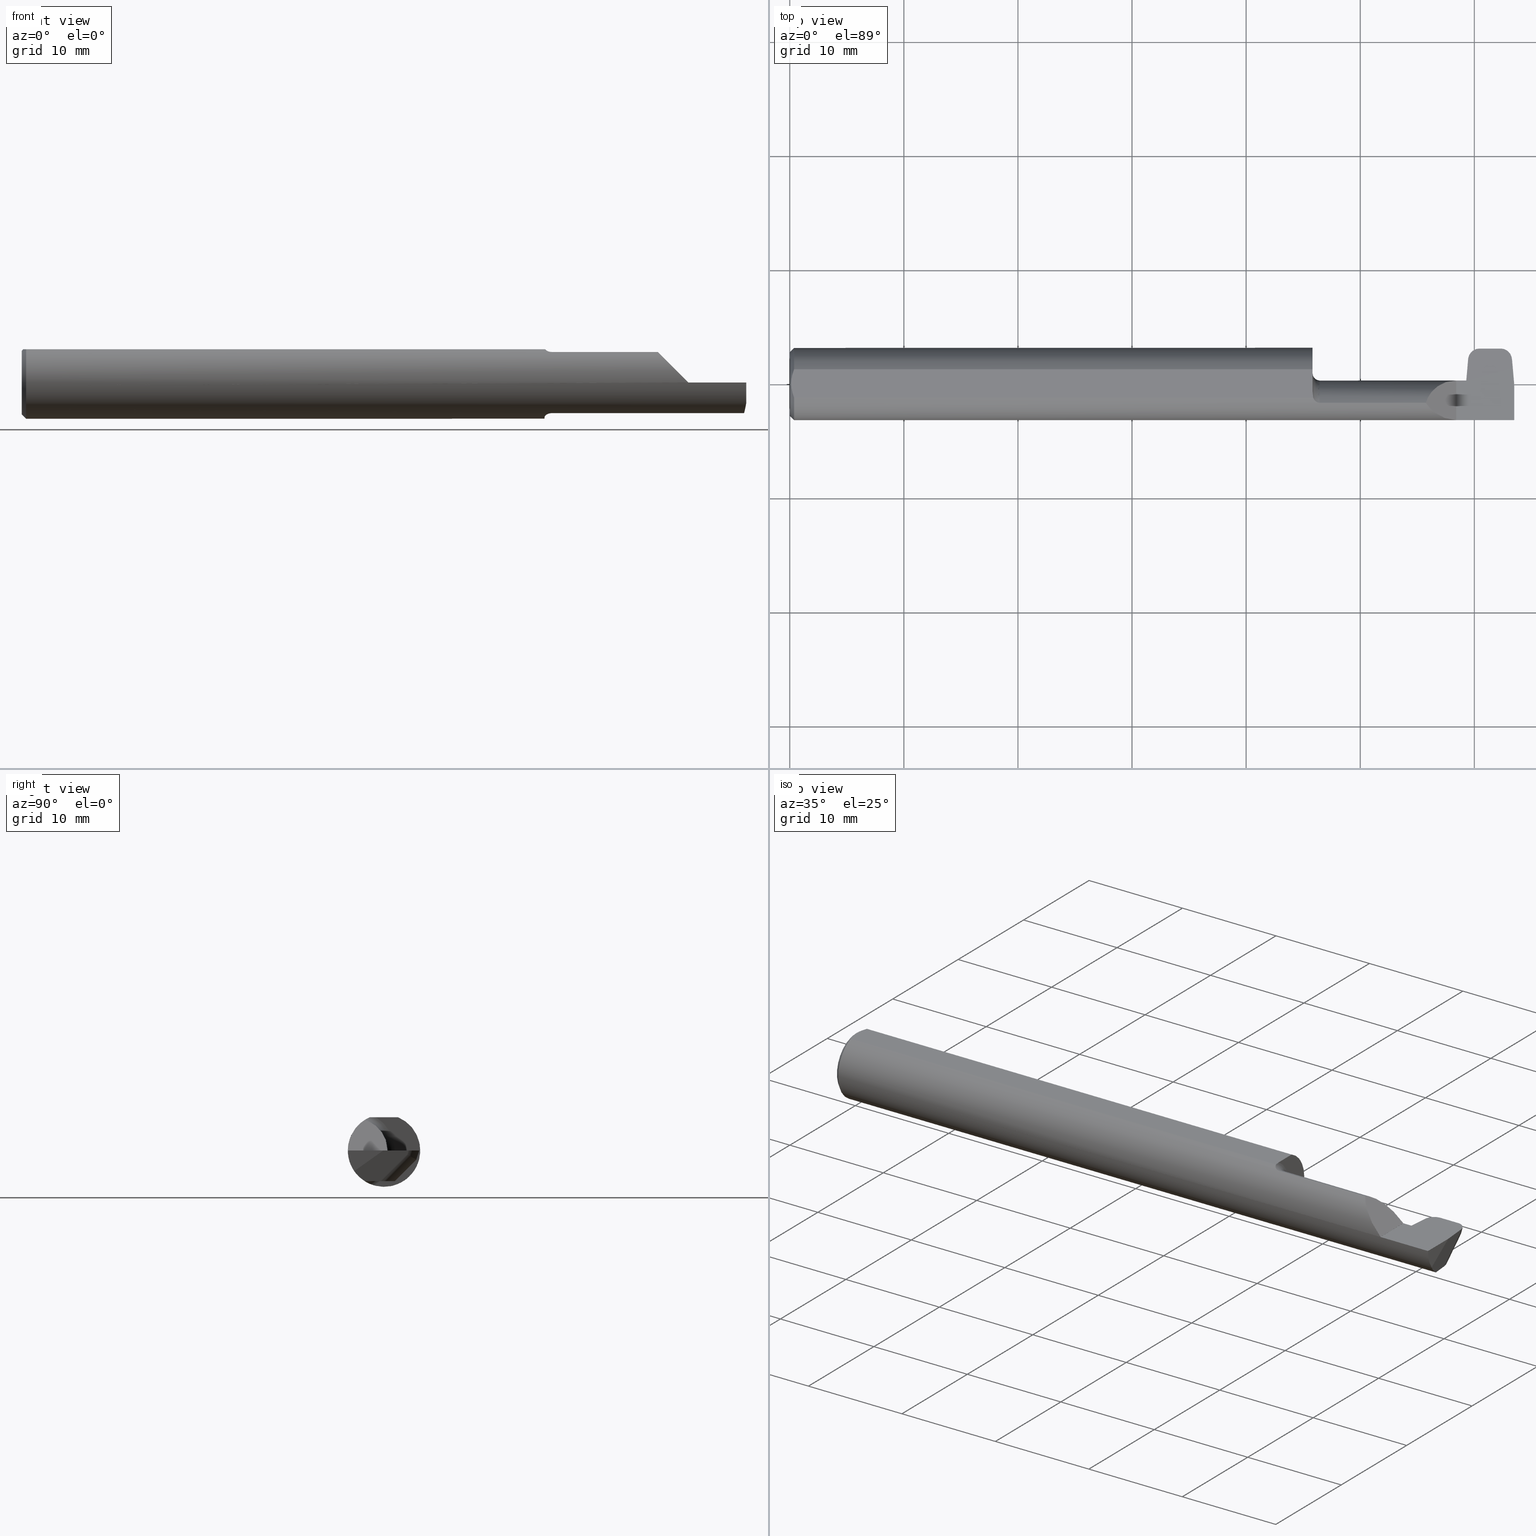
[diagram: canonical four-view strip — front | top / right | iso, engineering-drawing reading convention]
A machine part, canonical four-view strip (front | top / right | iso — engineering-drawing reading convention). The complete STEP part file that produces these views, byte-faithful:
ISO-10303-21;
HEADER;
FILE_DESCRIPTION (( 'STEP AP203' ),
    '1' );
FILE_NAME ('224807-GOR144-10.STEP',
    '2024-07-08T17:48:46',
    ( '' ),
    ( '' ),
    'SwSTEP 2.0',
    'SolidWorks 2024',
    '' );
FILE_SCHEMA (( 'CONFIG_CONTROL_DESIGN' ));
ENDSEC;

DATA;
#1 = CARTESIAN_POINT ( 'NONE',  ( 2.345062513822159467, 0.09879994324858185073, -0.02467646027986501386 ) ) ;
#2 = AXIS2_PLACEMENT_3D ( 'NONE', #4, #470, #551 ) ;
#3 =( GEOMETRIC_REPRESENTATION_CONTEXT ( 3 ) GLOBAL_UNCERTAINTY_ASSIGNED_CONTEXT ( ( #625 ) ) GLOBAL_UNIT_ASSIGNED_CONTEXT ( ( #144, #671, #353 ) ) REPRESENTATION_CONTEXT ( 'NONE', 'WORKASPACE' ) );
#4 = CARTESIAN_POINT ( 'NONE',  ( 2.346311322083690420, -0.09784999999999999254, 0.000000000000000000 ) ) ;
#5 = CARTESIAN_POINT ( 'NONE',  ( 2.500000000000000000, 0.000000000000000000, 0.000000000000000000 ) ) ;
#6 = EDGE_CURVE ( 'NONE', #653, #254, #50, .T. ) ;
#7 = EDGE_CURVE ( 'NONE', #469, #249, #800, .T. ) ;
#8 = CARTESIAN_POINT ( 'NONE',  ( 2.489063917059260334, 0.1221499999999998004, 0.000000000000000000 ) ) ;
#9 = CYLINDRICAL_SURFACE ( 'NONE', #478, 0.1100000000000000283 ) ;
#10 = CARTESIAN_POINT ( 'NONE',  ( 0.01499999999999915637, 0.000000000000000000, 0.000000000000000000 ) ) ;
#11 = DIRECTION ( 'NONE',  ( -0.1109828012386701729, 0.1211164744642413138, 0.9864145261717157664 ) ) ;
#12 = B_SPLINE_CURVE_WITH_KNOTS ( 'NONE', 3,
 ( #697, #567, #91, #836 ),
 .UNSPECIFIED., .F., .F.,
 ( 4, 4 ),
 ( 2.168404344971008868E-19, 0.0005630975672748592814 ),
 .UNSPECIFIED. ) ;
#13 = LINE ( 'NONE', #368, #562 ) ;
#14 = CARTESIAN_POINT ( 'NONE',  ( 2.334427846889238989, 0.01216344184561222661, 0.0001094750472970606276 ) ) ;
#15 = VECTOR ( 'NONE', #569, 39.37007874015748143 ) ;
#16 = AXIS2_PLACEMENT_3D ( 'NONE', #635, #694, #87 ) ;
#17 = DIRECTION ( 'NONE',  ( -0.000000000000000000, 1.000000000000000000, -0.000000000000000000 ) ) ;
#18 = CARTESIAN_POINT ( 'NONE',  ( 2.474803594749801938, 0.1221499999999997171, -1.707404996040164203E-17 ) ) ;
#19 = FACE_OUTER_BOUND ( 'NONE', #395, .T. ) ;
#20 = LINE ( 'NONE', #372, #459 ) ;
#21 = DIRECTION ( 'NONE',  ( 0.02528153024484614680, -0.7068807693764396216, -0.7068807693764568301 ) ) ;
#22 = MANIFOLD_SOLID_BREP ( '53930093-F822-408a-A2DE-716D456C1D50-GAAFaceID8', #783 ) ;
#23 = EDGE_CURVE ( 'NONE', #456, #853, #58, .T. ) ;
#24 = DIRECTION ( 'NONE',  ( -0.02528153024484441555, -0.7068807693764397326, -0.7068807693764569411 ) ) ;
#25 = LINE ( 'NONE', #45, #225 ) ;
#26 = CARTESIAN_POINT ( 'NONE',  ( 1.811931173230983072, -0.05931078277131181242, -0.1099137017871685551 ) ) ;
#27 = VECTOR ( 'NONE', #532, 39.37007874015748143 ) ;
#28 = VERTEX_POINT ( 'NONE', #206 ) ;
#29 = CC_DESIGN_SECURITY_CLASSIFICATION ( #188, ( #547 ) ) ;
#30 = FACE_OUTER_BOUND ( 'NONE', #195, .T. ) ;
#31 = EDGE_CURVE ( 'NONE', #115, #249, #411, .T. ) ;
#32 = ORIENTED_EDGE ( 'NONE', *, *, #166, .T. ) ;
#33 = CARTESIAN_POINT ( 'NONE',  ( 2.300000000000000266, 0.01214944318040891459, 0.0003500000000001822508 ) ) ;
#34 = EDGE_LOOP ( 'NONE', ( #250, #855, #106 ) ) ;
#35 = VERTEX_POINT ( 'NONE', #819 ) ;
#36 = DIRECTION ( 'NONE',  ( -1.000000000000000000, -0.000000000000000000, -0.000000000000000000 ) ) ;
#37 = ORIENTED_EDGE ( 'NONE', *, *, #510, .F. ) ;
#38 = AXIS2_PLACEMENT_3D ( 'NONE', #275, #673, #466 ) ;
#39 = ADVANCED_FACE ( 'NONE', ( #539 ), #338, .F. ) ;
#40 = VECTOR ( 'NONE', #347, 39.37007874015748143 ) ;
#41 = ORIENTED_EDGE ( 'NONE', *, *, #141, .F. ) ;
#42 = ORIENTED_EDGE ( 'NONE', *, *, #304, .F. ) ;
#43 = VERTEX_POINT ( 'NONE', #740 ) ;
#44 = ADVANCED_FACE ( 'NONE', ( #801 ), #423, .F. ) ;
#45 = CARTESIAN_POINT ( 'NONE',  ( 2.481051614048140674, 0.06508798985161054484, -0.1055107870327721409 ) ) ;
#46 = ORIENTED_EDGE ( 'NONE', *, *, #487, .T. ) ;
#47 = VERTEX_POINT ( 'NONE', #351 ) ;
#48 = CARTESIAN_POINT ( 'NONE',  ( 2.331242751836523741, 0.01105540399502986243, -0.01789648648597841687 ) ) ;
#49 = ADVANCED_FACE ( 'NONE', ( #479 ), #354, .F. ) ;
#50 = LINE ( 'NONE', #594, #27 ) ;
#51 = CC_DESIGN_DATE_AND_TIME_ASSIGNMENT ( #484, #546, ( #188 ) ) ;
#52 =( BOUNDED_CURVE ( )  B_SPLINE_CURVE ( 3, ( #336, #818, #194, #557 ),
 .UNSPECIFIED., .F., .F. ) 
 B_SPLINE_CURVE_WITH_KNOTS ( ( 4, 4 ),
 ( 1.698928905159842850, 1.833501537714475660 ),
 .UNSPECIFIED. ) 
 CURVE ( )  GEOMETRIC_REPRESENTATION_ITEM ( )  RATIONAL_B_SPLINE_CURVE ( ( 1.000000000000000000, 0.9984914198443723965, 0.9984914198443723965, 1.000000000000000000 ) ) 
 REPRESENTATION_ITEM ( '' )  );
#53 = VERTEX_POINT ( 'NONE', #472 ) ;
#54 = CARTESIAN_POINT ( 'NONE',  ( 2.330172693961769070, 0.008882529890359617750, -0.02661140851596355966 ) ) ;
#55 = VERTEX_POINT ( 'NONE', #264 ) ;
#56 = COORDINATED_UNIVERSAL_TIME_OFFSET ( 8, 0, .BEHIND. ) ;
#57 = ORIENTED_EDGE ( 'NONE', *, *, #768, .T. ) ;
#58 = LINE ( 'NONE', #808, #710 ) ;
#59 = AXIS2_PLACEMENT_3D ( 'NONE', #419, #751, #687 ) ;
#60 = ORIENTED_EDGE ( 'NONE', *, *, #304, .T. ) ;
#61 = AXIS2_PLACEMENT_3D ( 'NONE', #735, #876, #126 ) ;
#62 = CARTESIAN_POINT ( 'NONE',  ( 2.443472109615477450, 0.08792232813663614088, -0.1053419422097151142 ) ) ;
#63 =( BOUNDED_CURVE ( )  B_SPLINE_CURVE ( 3, ( #670, #290, #811, #825 ),
 .UNSPECIFIED., .F., .T. ) 
 B_SPLINE_CURVE_WITH_KNOTS ( ( 4, 4 ),
 ( 0.1478821064332885571, 1.570796326794896114 ),
 .UNSPECIFIED. ) 
 CURVE ( )  GEOMETRIC_REPRESENTATION_ITEM ( )  RATIONAL_B_SPLINE_CURVE ( ( 1.000000000000000000, 0.8382741850914512405, 0.8382741850914512405, 1.000000000000000000 ) ) 
 REPRESENTATION_ITEM ( '' )  );
#64 = EDGE_LOOP ( 'NONE', ( #809, #525, #321, #804, #713, #534, #119, #861, #257, #130 ) ) ;
#65 = CARTESIAN_POINT ( 'NONE',  ( 2.384125195572339262, 0.03714530962163972022, -0.1055107870327721409 ) ) ;
#66 = EDGE_LOOP ( 'NONE', ( #802, #873, #780, #528, #672 ) ) ;
#67 = CARTESIAN_POINT ( 'NONE',  ( 0.005949639560152591468, 0.01681318950603462661, 0.1148500000000000076 ) ) ;
#68 = CARTESIAN_POINT ( 'NONE',  ( 0.01499999999999915637, 0.000000000000000000, -0.1248500000000000026 ) ) ;
#69 = DIRECTION ( 'NONE',  ( 0.000000000000000000, 0.000000000000000000, -1.000000000000000000 ) ) ;
#70 = PLANE ( 'NONE',  #377 ) ;
#71 = DIRECTION ( 'NONE',  ( 1.000000000000000000, 0.000000000000000000, 0.000000000000000000 ) ) ;
#72 = DIRECTION ( 'NONE',  ( 0.000000000000000000, 0.000000000000000000, -1.000000000000000000 ) ) ;
#73 = EDGE_CURVE ( 'NONE', #443, #254, #192, .T. ) ;
#74 = ADVANCED_FACE ( 'NONE', ( #605 ), #364, .T. ) ;
#75 = VECTOR ( 'NONE', #490, 39.37007874015748143 ) ;
#76 = VECTOR ( 'NONE', #409, 39.37007874015748143 ) ;
#77 = CARTESIAN_POINT ( 'NONE',  ( 2.500000000000000000, -0.1027548813330047828, -0.07091513845604555111 ) ) ;
#78 = DIRECTION ( 'NONE',  ( -0.08982109674372458497, 0.3077679217474507678, 0.9472122660328092802 ) ) ;
#79 = ADVANCED_FACE ( 'NONE', ( #879 ), #70, .T. ) ;
#80 = CARTESIAN_POINT ( 'NONE',  ( 0.000000000000000000, 0.000000000000000000, 0.000000000000000000 ) ) ;
#81 = DIRECTION ( 'NONE',  ( 0.000000000000000000, 0.000000000000000000, -1.000000000000000000 ) ) ;
#82 = CARTESIAN_POINT ( 'NONE',  ( 2.333440164071409750, 0.01215000000000003577, 0.000000000000000000 ) ) ;
#83 = CALENDAR_DATE ( 2024, 8, 7 ) ;
#84 = CC_DESIGN_PERSON_AND_ORGANIZATION_ASSIGNMENT ( #147, #832, ( #188 ) ) ;
#85 = DESIGN_CONTEXT ( 'detailed design', #536, 'design' ) ;
#86 = CARTESIAN_POINT ( 'NONE',  ( 2.337434248793043068, 0.008882529890359626423, -0.02661140851596348680 ) ) ;
#87 = DIRECTION ( 'NONE',  ( 0.1218693434051477398, 0.000000000000000000, 0.9925461516413219831 ) ) ;
#88 = DIRECTION ( 'NONE',  ( -1.000000000000000000, -0.000000000000000000, -0.000000000000000000 ) ) ;
#89 = VECTOR ( 'NONE', #217, 39.37007874015748143 ) ;
#90 = CC_DESIGN_PERSON_AND_ORGANIZATION_ASSIGNMENT ( #122, #288, ( #576 ) ) ;
#91 = CARTESIAN_POINT ( 'NONE',  ( 1.804000000000000270, -0.03432117512376132301, 0.1148500000000000076 ) ) ;
#92 = LINE ( 'NONE', #837, #76 ) ;
#93 = CARTESIAN_POINT ( 'NONE',  ( 2.346311322083690420, -0.06674575881451198789, -0.1055107870327721270 ) ) ;
#94 = CARTESIAN_POINT ( 'NONE',  ( 1.806165089549962355, -0.04895916665957456698, 0.1148500000000000076 ) ) ;
#95 = CARTESIAN_POINT ( 'NONE',  ( 2.340825582351316214, 0.08513566491434625128, 0.000000000000000000 ) ) ;
#96 = CARTESIAN_POINT ( 'NONE',  ( 2.300000000000000266, -0.1248495094103296982, 0.0003500000000000749148 ) ) ;
#97 = B_SPLINE_CURVE_WITH_KNOTS ( 'NONE', 3,
 ( #348, #614, #283, #752, #226, #94 ),
 .UNSPECIFIED., .F., .F.,
 ( 4, 2, 4 ),
 ( 0.000000000000000000, 0.0004112572997248626011, 0.0008225145994497252023 ),
 .UNSPECIFIED. ) ;
#98 = EDGE_CURVE ( 'NONE', #719, #339, #579, .T. ) ;
#99 = VERTEX_POINT ( 'NONE', #754 ) ;
#100 = CARTESIAN_POINT ( 'NONE',  ( 2.469780147758521505, 0.03714530962163987982, -0.1055107870327721548 ) ) ;
#101 = APPROVAL_PERSON_ORGANIZATION ( #686, #872, #731 ) ;
#102 = ORIENTED_EDGE ( 'NONE', *, *, #259, .F. ) ;
#103 = ORIENTED_EDGE ( 'NONE', *, *, #574, .F. ) ;
#104 = ORIENTED_EDGE ( 'NONE', *, *, #865, .F. ) ;
#105 = CARTESIAN_POINT ( 'NONE',  ( 2.450951228904883816, 0.1122803079667806653, -0.03037578868762937090 ) ) ;
#106 = ORIENTED_EDGE ( 'NONE', *, *, #840, .T. ) ;
#107 = EDGE_LOOP ( 'NONE', ( #60, #322, #37, #473 ) ) ;
#108 = CARTESIAN_POINT ( 'NONE',  ( 1.804000000000000270, -0.02689594796630704471, 0.1148500000000000076 ) ) ;
#109 = ORIENTED_EDGE ( 'NONE', *, *, #514, .T. ) ;
#110 = AXIS2_PLACEMENT_3D ( 'NONE', #679, #71, #485 ) ;
#111 = ORGANIZATION ( 'UNSPECIFIED', 'UNSPECIFIED', '' ) ;
#112 = EDGE_CURVE ( 'NONE', #99, #339, #204, .T. ) ;
#113 = ORIENTED_EDGE ( 'NONE', *, *, #31, .T. ) ;
#114 =( BOUNDED_CURVE ( )  B_SPLINE_CURVE ( 3, ( #785, #100, #643, #573 ),
 .UNSPECIFIED., .F., .T. ) 
 B_SPLINE_CURVE_WITH_KNOTS ( ( 4, 4 ),
 ( 3.116316507558938742, 4.539230727920552155 ),
 .UNSPECIFIED. ) 
 CURVE ( )  GEOMETRIC_REPRESENTATION_ITEM ( )  RATIONAL_B_SPLINE_CURVE ( ( 1.000000000000000000, 0.8382741850914499082, 0.8382741850914499082, 1.000000000000000000 ) ) 
 REPRESENTATION_ITEM ( '' )  );
#115 = VERTEX_POINT ( 'NONE', #554 ) ;
#116 = ADVANCED_BREP_SHAPE_REPRESENTATION ( '224807-GOR144-10', ( #22, #508 ), #3 ) ;
#117 = CARTESIAN_POINT ( 'NONE',  ( 2.346311322083690420, -0.09784999999999999254, 0.000000000000000000 ) ) ;
#118 = VERTEX_POINT ( 'NONE', #678 ) ;
#119 = ORIENTED_EDGE ( 'NONE', *, *, #636, .F. ) ;
#120 = CARTESIAN_POINT ( 'NONE',  ( 2.346311322083690420, -0.004292389249275746499, -0.1055107870327721270 ) ) ;
#121 = ORIENTED_EDGE ( 'NONE', *, *, #112, .F. ) ;
#122 = PERSON_AND_ORGANIZATION ( #242, #111 ) ;
#123 = EDGE_LOOP ( 'NONE', ( #410, #796, #383, #449, #856 ) ) ;
#124 = CARTESIAN_POINT ( 'NONE',  ( 0.004999999999933147331, 5.639788019834102201E-15, 0.1148500000000000076 ) ) ;
#125 = ORIENTED_EDGE ( 'NONE', *, *, #238, .F. ) ;
#126 = DIRECTION ( 'NONE',  ( -0.000000000000000000, 0.000000000000000000, 1.000000000000000000 ) ) ;
#127 = DIRECTION ( 'NONE',  ( 0.000000000000000000, 0.7071067811865560104, -0.7071067811865391350 ) ) ;
#128 = TOROIDAL_SURFACE ( 'NONE', #627, 0.1350000000000000366, 0.02500000000000000139 ) ;
#129 =( LENGTH_UNIT ( ) NAMED_UNIT ( * ) SI_UNIT ( $, .METRE. ) );
#130 = ORIENTED_EDGE ( 'NONE', *, *, #682, .F. ) ;
#131 = DIRECTION ( 'NONE',  ( -0.7071067811865474617, 0.000000000000000000, 0.7071067811865474617 ) ) ;
#132 = VECTOR ( 'NONE', #17, 39.37007874015748143 ) ;
#133 = ORIENTED_EDGE ( 'NONE', *, *, #768, .F. ) ;
#134 = FACE_OUTER_BOUND ( 'NONE', #580, .T. ) ;
#135 = DIRECTION ( 'NONE',  ( 1.000000000000000000, 0.000000000000000000, 0.000000000000000000 ) ) ;
#136 = LINE ( 'NONE', #350, #40 ) ;
#137 = DIRECTION ( 'NONE',  ( 1.000000000000000000, 0.000000000000000000, 0.000000000000000000 ) ) ;
#138 = PLANE ( 'NONE',  #2 ) ;
#139 = EDGE_CURVE ( 'NONE', #716, #641, #696, .T. ) ;
#140 = DIRECTION ( 'NONE',  ( -1.000000000000000000, 9.237377621997176378E-16, 0.000000000000000000 ) ) ;
#141 = EDGE_CURVE ( 'NONE', #35, #461, #609, .T. ) ;
#142 = DIRECTION ( 'NONE',  ( -2.118347822640888778E-15, -0.9925461516413219831, 0.1218693434051477398 ) ) ;
#143 = EDGE_CURVE ( 'NONE', #674, #115, #311, .T. ) ;
#144 =( CONVERSION_BASED_UNIT ( 'INCH', #738 ) LENGTH_UNIT ( ) NAMED_UNIT ( #177 ) );
#145 = EDGE_CURVE ( 'NONE', #316, #641, #838, .T. ) ;
#146 = CIRCLE ( 'NONE', #560, 0.1248500000000000026 ) ;
#147 = PERSON_AND_ORGANIZATION ( #242, #111 ) ;
#148 = CARTESIAN_POINT ( 'NONE',  ( 1.806165089549962355, -0.04895916665957456698, 0.1148500000000000076 ) ) ;
#149 = CYLINDRICAL_SURFACE ( 'NONE', #517, 0.04000000000000000083 ) ;
#150 = CC_DESIGN_PERSON_AND_ORGANIZATION_ASSIGNMENT ( #360, #761, ( #547 ) ) ;
#151 = CARTESIAN_POINT ( 'NONE',  ( 2.382546924955699641, 0.1122803079667807485, -0.03037578868762928069 ) ) ;
#152 = SECURITY_CLASSIFICATION_LEVEL ( 'unclassified' ) ;
#153 = LINE ( 'NONE', #501, #492 ) ;
#154 =( BOUNDED_CURVE ( )  B_SPLINE_CURVE ( 3, ( #737, #878, #817, #481 ),
 .UNSPECIFIED., .F., .F. ) 
 B_SPLINE_CURVE_WITH_KNOTS ( ( 4, 4 ),
 ( 6.013479987146138406, 7.464055041535656798 ),
 .UNSPECIFIED. ) 
 CURVE ( )  GEOMETRIC_REPRESENTATION_ITEM ( )  RATIONAL_B_SPLINE_CURVE ( ( 1.000000000000000000, 0.8322058143701920319, 0.8322058143701920319, 1.000000000000000000 ) ) 
 REPRESENTATION_ITEM ( '' )  );
#155 = DIRECTION ( 'NONE',  ( 0.000000000000000000, -0.8154497401906256604, -0.5788278856646776882 ) ) ;
#156 = DIRECTION ( 'NONE',  ( -1.000000000000000000, -0.000000000000000000, -0.000000000000000000 ) ) ;
#157 = COORDINATED_UNIVERSAL_TIME_OFFSET ( 8, 0, .BEHIND. ) ;
#158 = CARTESIAN_POINT ( 'NONE',  ( 0.01499999999999915637, 0.04895916665957456698, 0.1148500000000000076 ) ) ;
#159 = CARTESIAN_POINT ( 'NONE',  ( 1.804000000000000270, 0.2121500000000000608, 0.000000000000000000 ) ) ;
#160 = LINE ( 'NONE', #93, #318 ) ;
#161 = AXIS2_PLACEMENT_3D ( 'NONE', #477, #829, #127 ) ;
#162 = APPROVAL_PERSON_ORGANIZATION ( #278, #711, #750 ) ;
#163 = CARTESIAN_POINT ( 'NONE',  ( 2.443472109615477450, 0.04988006748482985697, -0.09298126243471767360 ) ) ;
#164 = CARTESIAN_POINT ( 'NONE',  ( 2.382176605213636389, 0.1122803079667807763, -0.03037578868762924253 ) ) ;
#165 = CARTESIAN_POINT ( 'NONE',  ( 2.218168021404921753, -0.1036236216557786111, 0.08218197859507844760 ) ) ;
#166 = EDGE_CURVE ( 'NONE', #639, #456, #222, .T. ) ;
#167 = EDGE_CURVE ( 'NONE', #443, #47, #428, .T. ) ;
#168 = CARTESIAN_POINT ( 'NONE',  ( 2.491983719844224954, 0.1082340726405869036, 0.01381150086259022580 ) ) ;
#169 = VERTEX_POINT ( 'NONE', #292 ) ;
#170 = EDGE_CURVE ( 'NONE', #247, #324, #160, .T. ) ;
#171 = ORIENTED_EDGE ( 'NONE', *, *, #793, .T. ) ;
#172 = CARTESIAN_POINT ( 'NONE',  ( 1.829000000000000181, -0.06674575881451197401, -0.1055107870327721270 ) ) ;
#173 = AXIS2_PLACEMENT_3D ( 'NONE', #831, #369, #363 ) ;
#174 = CIRCLE ( 'NONE', #173, 0.1248500000000000026 ) ;
#175 = AXIS2_PLACEMENT_3D ( 'NONE', #313, #578, #848 ) ;
#176 = PRODUCT_RELATED_PRODUCT_CATEGORY ( 'detail', '', ( #576 ) ) ;
#177 = DIMENSIONAL_EXPONENTS ( 1.000000000000000000, 0.000000000000000000, 0.000000000000000000, 0.000000000000000000, 0.000000000000000000, 0.000000000000000000, 0.000000000000000000 ) ;
#178 = VERTEX_POINT ( 'NONE', #503 ) ;
#179 = CARTESIAN_POINT ( 'NONE',  ( 2.249507022518907995, 0.01198878289334361948, 0.05084297748109223303 ) ) ;
#180 = ORIENTED_EDGE ( 'NONE', *, *, #527, .F. ) ;
#181 = LINE ( 'NONE', #778, #757 ) ;
#182 = ORIENTED_EDGE ( 'NONE', *, *, #549, .F. ) ;
#183 = ORIENTED_EDGE ( 'NONE', *, *, #236, .F. ) ;
#184 = ORIENTED_EDGE ( 'NONE', *, *, #170, .F. ) ;
#185 = DIRECTION ( 'NONE',  ( 0.000000000000000000, 0.000000000000000000, 1.000000000000000000 ) ) ;
#186 =( BOUNDED_CURVE ( )  B_SPLINE_CURVE ( 3, ( #506, #558, #164, #151 ),
 .UNSPECIFIED., .F., .F. ) 
 B_SPLINE_CURVE_WITH_KNOTS ( ( 4, 4 ),
 ( 0.01807338777465588436, 0.04573422180255750508 ),
 .UNSPECIFIED. ) 
 CURVE ( )  GEOMETRIC_REPRESENTATION_ITEM ( )  RATIONAL_B_SPLINE_CURVE ( ( 1.000000000000000000, 0.9999362408714059791, 0.9999362408714059791, 1.000000000000000000 ) ) 
 REPRESENTATION_ITEM ( '' )  );
#187 = VECTOR ( 'NONE', #495, 39.37007874015748854 ) ;
#188 = SECURITY_CLASSIFICATION ( '', '', #152 ) ;
#189 = ORIENTED_EDGE ( 'NONE', *, *, #441, .T. ) ;
#190 = VERTEX_POINT ( 'NONE', #82 ) ;
#191 = CYLINDRICAL_SURFACE ( 'NONE', #295, 0.03999999999999999389 ) ;
#192 = B_SPLINE_CURVE_WITH_KNOTS ( 'NONE', 3,
 ( #196, #733, #617, #67, #483, #124 ),
 .UNSPECIFIED., .F., .F.,
 ( 4, 2, 4 ),
 ( 0.002811086258179029771, 0.003441534532783594585, 0.004071982807388159833 ),
 .UNSPECIFIED. ) ;
#193 = EDGE_CURVE ( 'NONE', #641, #469, #186, .T. ) ;
#194 = CARTESIAN_POINT ( 'NONE',  ( 2.345754866574785158, -6.457864475144017564E-05, -0.09947975995459625020 ) ) ;
#195 = EDGE_LOOP ( 'NONE', ( #57, #727, #519, #376 ) ) ;
#196 = CARTESIAN_POINT ( 'NONE',  ( 0.01499999999999915637, 0.04895916665957456698, 0.1148500000000000076 ) ) ;
#197 = VERTEX_POINT ( 'NONE', #759 ) ;
#198 = CALENDAR_DATE ( 2024, 8, 7 ) ;
#199 = ORIENTED_EDGE ( 'NONE', *, *, #704, .F. ) ;
#200 = DIRECTION ( 'NONE',  ( -0.7071067811865475727, 0.000000000000000000, -0.7071067811865475727 ) ) ;
#201 = ORIENTED_EDGE ( 'NONE', *, *, #659, .T. ) ;
#202 = DIRECTION ( 'NONE',  ( -0.02528153024484615027, 0.7068807693764397326, 0.7068807693764569411 ) ) ;
#203 = FACE_OUTER_BOUND ( 'NONE', #107, .T. ) ;
#204 = CIRCLE ( 'NONE', #584, 0.1248500000000000026 ) ;
#205 = DATE_TIME_ROLE ( 'creation_date' ) ;
#206 = CARTESIAN_POINT ( 'NONE',  ( 2.194839212967228281, -0.06674575881451201564, 0.1055107870327720992 ) ) ;
#207 = LOCAL_TIME ( 10, 48, 46.00000000000000000, #284 ) ;
#208 = CARTESIAN_POINT ( 'NONE',  ( 2.500000000000000000, 0.03714530962163974104, -0.1055107870327721409 ) ) ;
#209 = COORDINATED_UNIVERSAL_TIME_OFFSET ( 8, 0, .BEHIND. ) ;
#210 = EDGE_CURVE ( 'NONE', #716, #312, #359, .T. ) ;
#211 = DIRECTION ( 'NONE',  ( -1.000000000000000000, -0.000000000000000000, -0.000000000000000000 ) ) ;
#212 = EDGE_CURVE ( 'NONE', #190, #169, #289, .T. ) ;
#213 = CARTESIAN_POINT ( 'NONE',  ( 2.342130090190512437, 0.08066582785904737041, -0.01375674391894978095 ) ) ;
#214 = CARTESIAN_POINT ( 'NONE',  ( 1.804000000000000270, -0.09784999999999999254, 0.000000000000000000 ) ) ;
#215 = EDGE_CURVE ( 'NONE', #730, #443, #146, .T. ) ;
#216 = CALENDAR_DATE ( 2024, 8, 7 ) ;
#217 = DIRECTION ( 'NONE',  ( 0.000000000000000000, -1.000000000000000000, 0.000000000000000000 ) ) ;
#218 = CARTESIAN_POINT ( 'NONE',  ( 0.01499999999999914770, -0.04895916665957456698, 0.1148500000000000076 ) ) ;
#219 = CC_DESIGN_PERSON_AND_ORGANIZATION_ASSIGNMENT ( #429, #281, ( #547 ) ) ;
#220 = CARTESIAN_POINT ( 'NONE',  ( 0.004999999999998236758, -0.008410179126392275384, 0.1148500000000000215 ) ) ;
#221 = APPLICATION_CONTEXT ( 'configuration controlled 3d designs of mechanical parts and assemblies' ) ;
#222 = LINE ( 'NONE', #767, #770 ) ;
#223 = VECTOR ( 'NONE', #624, 39.37007874015748854 ) ;
#224 = SHAPE_DEFINITION_REPRESENTATION ( #358, #116 ) ;
#225 = VECTOR ( 'NONE', #241, 39.37007874015748143 ) ;
#226 = CARTESIAN_POINT ( 'NONE',  ( 1.807833696467887163, -0.05373531148618881231, 0.1128139871958513674 ) ) ;
#227 = CARTESIAN_POINT ( 'NONE',  ( 0.004999999999933147331, 5.639788019834102201E-15, 0.1148500000000000076 ) ) ;
#228 = DIRECTION ( 'NONE',  ( 1.000000000000000000, 0.000000000000000000, 0.000000000000000000 ) ) ;
#229 = CARTESIAN_POINT ( 'NONE',  ( 2.346311322083690420, -0.0004059415692837250273, -0.1022599378696536082 ) ) ;
#230 = LINE ( 'NONE', #703, #744 ) ;
#231 = DIRECTION ( 'NONE',  ( -0.000000000000000000, -1.000000000000000000, -0.000000000000000000 ) ) ;
#232 = PLANE ( 'NONE',  #721 ) ;
#233 = DIRECTION ( 'NONE',  ( -0.08982109674372389108, -0.3077679217474507123, -0.9472122660328095023 ) ) ;
#234 = CARTESIAN_POINT ( 'NONE',  ( 2.333440164071409750, 0.01215000000000003577, 0.000000000000000000 ) ) ;
#235 = VECTOR ( 'NONE', #631, 39.37007874015748854 ) ;
#236 = EDGE_CURVE ( 'NONE', #312, #456, #566, .T. ) ;
#237 = LOCAL_TIME ( 10, 48, 46.00000000000000000, #662 ) ;
#238 = EDGE_CURVE ( 'NONE', #320, #730, #174, .T. ) ;
#239 = CARTESIAN_POINT ( 'NONE',  ( 1.821166109659049681, -0.06565312228625852509, -0.1062163489814185457 ) ) ;
#240 = ORIENTED_EDGE ( 'NONE', *, *, #139, .T. ) ;
#241 = DIRECTION ( 'NONE',  ( 0.08715574274765257312, -0.9961946980917459893, 1.274169201729680285E-16 ) ) ;
#242 = PERSON ( 'UNSPECIFIED', 'UNSPECIFIED', 'UNSPECIFIED', ('UNSPECIFIED'), ('UNSPECIFIED'), ('UNSPECIFIED') ) ;
#243 = EDGE_CURVE ( 'NONE', #35, #118, #293, .T. ) ;
#244 = ORIENTED_EDGE ( 'NONE', *, *, #574, .T. ) ;
#245 = LINE ( 'NONE', #516, #669 ) ;
#246 =( BOUNDED_CURVE ( )  B_SPLINE_CURVE ( 3, ( #229, #638, #634, #374 ),
 .UNSPECIFIED., .F., .T. ) 
 B_SPLINE_CURVE_WITH_KNOTS ( ( 4, 4 ),
 ( 2.859137914601874719, 2.870817887788819966 ),
 .UNSPECIFIED. ) 
 CURVE ( )  GEOMETRIC_REPRESENTATION_ITEM ( )  RATIONAL_B_SPLINE_CURVE ( ( 1.000000000000000000, 0.9999886315511732349, 0.9999886315511732349, 1.000000000000000000 ) ) 
 REPRESENTATION_ITEM ( '' )  );
#247 = VERTEX_POINT ( 'NONE', #621 ) ;
#248 = DIRECTION ( 'NONE',  ( -1.000000000000000000, -0.000000000000000000, -0.000000000000000000 ) ) ;
#249 = VERTEX_POINT ( 'NONE', #499 ) ;
#250 = ORIENTED_EDGE ( 'NONE', *, *, #328, .T. ) ;
#251 = CARTESIAN_POINT ( 'NONE',  ( 0.01499999999999915637, 0.000000000000000000, 0.000000000000000000 ) ) ;
#252 = EDGE_LOOP ( 'NONE', ( #182, #587, #109, #599, #171, #787 ) ) ;
#253 = EDGE_LOOP ( 'NONE', ( #41, #786, #668 ) ) ;
#254 = VERTEX_POINT ( 'NONE', #700 ) ;
#255 = CARTESIAN_POINT ( 'NONE',  ( 2.500000000000000000, -0.06674575881451198789, -0.1055107870327721270 ) ) ;
#256 = ORIENTED_EDGE ( 'NONE', *, *, #704, .T. ) ;
#257 = ORIENTED_EDGE ( 'NONE', *, *, #282, .T. ) ;
#258 = CARTESIAN_POINT ( 'NONE',  ( 2.492585572526551108, -0.06674575881451198789, -0.1055107870327721270 ) ) ;
#259 = EDGE_CURVE ( 'NONE', #178, #461, #683, .T. ) ;
#260 = B_SPLINE_CURVE_WITH_KNOTS ( 'NONE', 3,
 ( #303, #833, #570, #26, #299, #239, #361, #775 ),
 .UNSPECIFIED., .F., .F.,
 ( 4, 2, 2, 4 ),
 ( 0.000000000000000000, 0.0005958128942917653497, 0.0008937193414376426578, 0.001191625788583520074 ),
 .UNSPECIFIED. ) ;
#261 = CIRCLE ( 'NONE', #648, 0.1350000000000000366 ) ;
#262 = CIRCLE ( 'NONE', #771, 0.1248500000000000026 ) ;
#263 = ORIENTED_EDGE ( 'NONE', *, *, #552, .T. ) ;
#264 = CARTESIAN_POINT ( 'NONE',  ( 2.346311322083690420, -0.0004059415692837250273, -0.1022599378696536082 ) ) ;
#265 = EDGE_LOOP ( 'NONE', ( #847, #877, #42, #739, #462 ) ) ;
#266 = FACE_OUTER_BOUND ( 'NONE', #777, .T. ) ;
#267 = DIRECTION ( 'NONE',  ( -1.000000000000000000, -0.000000000000000000, -0.000000000000000000 ) ) ;
#268 = VERTEX_POINT ( 'NONE', #465 ) ;
#269 = CARTESIAN_POINT ( 'NONE',  ( 2.492585572526551108, -0.06674575881451198789, -0.1055107870327721270 ) ) ;
#270 = ORIENTED_EDGE ( 'NONE', *, *, #726, .T. ) ;
#271 = LINE ( 'NONE', #810, #280 ) ;
#272 = ORIENTED_EDGE ( 'NONE', *, *, #637, .T. ) ;
#273 = CARTESIAN_POINT ( 'NONE',  ( 2.344992413048526902, 0.0006342409858723293018, -0.09378833079212679780 ) ) ;
#274 = MECHANICAL_CONTEXT ( 'NONE', #221, 'mechanical' ) ;
#275 = CARTESIAN_POINT ( 'NONE',  ( 0.000000000000000000, 0.000000000000000000, 0.000000000000000000 ) ) ;
#276 = CYLINDRICAL_SURFACE ( 'NONE', #447, 0.1248500000000000026 ) ;
#277 = AXIS2_PLACEMENT_3D ( 'NONE', #417, #211, #69 ) ;
#278 = PERSON_AND_ORGANIZATION ( #242, #111 ) ;
#279 = CARTESIAN_POINT ( 'NONE',  ( 2.381438851154371150, 0.1122564753854529696, -0.03039962126895710826 ) ) ;
#280 = VECTOR ( 'NONE', #675, 39.37007874015748143 ) ;
#281 = PERSON_AND_ORGANIZATION_ROLE ( 'design_supplier' ) ;
#282 = EDGE_CURVE ( 'NONE', #118, #190, #420, .T. ) ;
#283 = CARTESIAN_POINT ( 'NONE',  ( 1.818295400938419126, -0.06462416334000620211, 0.1068895594202840249 ) ) ;
#284 = COORDINATED_UNIVERSAL_TIME_OFFSET ( 8, 0, .BEHIND. ) ;
#285 = CARTESIAN_POINT ( 'NONE',  ( 2.494944802869536904, -0.08100450677091579343, -0.09649075241015638016 ) ) ;
#286 = B_SPLINE_CURVE_WITH_KNOTS ( 'NONE', 3,
 ( #227, #220, #362, #772, #439, #498 ),
 .UNSPECIFIED., .F., .F.,
 ( 4, 2, 4 ),
 ( 0.004071982807388159833, 0.004705731387952724089, 0.005339479968517289211 ),
 .UNSPECIFIED. ) ;
#287 = DIRECTION ( 'NONE',  ( 0.000000000000000000, -0.1218693434051477398, -0.9925461516413219831 ) ) ;
#288 = PERSON_AND_ORGANIZATION_ROLE ( 'design_owner' ) ;
#289 = LINE ( 'NONE', #234, #15 ) ;
#290 = CARTESIAN_POINT ( 'NONE',  ( 2.472434491440696824, 0.1113617231881444958, -0.03129437346626547101 ) ) ;
#291 = CARTESIAN_POINT ( 'NONE',  ( 2.342791685421993897, 0.07839890174911505472, -0.02073362508748151714 ) ) ;
#292 = CARTESIAN_POINT ( 'NONE',  ( 2.334440164071409640, 0.01215000000000003230, 0.000000000000000000 ) ) ;
#293 = CIRCLE ( 'NONE', #667, 0.1100000000000000283 ) ;
#294 = VECTOR ( 'NONE', #340, 39.37007874015748854 ) ;
#295 = AXIS2_PLACEMENT_3D ( 'NONE', #743, #202, #815 ) ;
#296 = CARTESIAN_POINT ( 'NONE',  ( 2.256362915931965585, -0.1247271782974887638, 0.04398708406803453902 ) ) ;
#297 = PLANE ( 'NONE',  #723 ) ;
#298 = DIRECTION ( 'NONE',  ( 0.000000000000000000, 0.000000000000000000, 1.000000000000000000 ) ) ;
#299 = CARTESIAN_POINT ( 'NONE',  ( 1.814619184248488670, -0.06191677978697745360, -0.1084368831979592024 ) ) ;
#300 = CARTESIAN_POINT ( 'NONE',  ( 2.300000000000000266, 0.1250000000000000000, -2.465075339897404302E-17 ) ) ;
#301 = CARTESIAN_POINT ( 'NONE',  ( 2.492302251767204435, 0.08513566491434633454, 0.000000000000000000 ) ) ;
#302 = EDGE_CURVE ( 'NONE', #674, #591, #676, .T. ) ;
#303 = CARTESIAN_POINT ( 'NONE',  ( 1.804000000000000270, -0.03544785385794579219, -0.1197120384792846048 ) ) ;
#304 = EDGE_CURVE ( 'NONE', #523, #43, #63, .T. ) ;
#305 =( BOUNDED_CURVE ( )  B_SPLINE_CURVE ( 3, ( #54, #48, #468, #606 ),
 .UNSPECIFIED., .F., .T. ) 
 B_SPLINE_CURVE_WITH_KNOTS ( ( 4, 4 ),
 ( 1.326450231515689859, 1.570796326794896780 ),
 .UNSPECIFIED. ) 
 CURVE ( )  GEOMETRIC_REPRESENTATION_ITEM ( )  RATIONAL_B_SPLINE_CURVE ( ( 1.000000000000000000, 0.9950307677608813961, 0.9950307677608813961, 1.000000000000000000 ) ) 
 REPRESENTATION_ITEM ( '' )  );
#306 = ADVANCED_FACE ( 'NONE', ( #619 ), #352, .F. ) ;
#307 = CIRCLE ( 'NONE', #277, 0.1098500000000004473 ) ;
#308 = CARTESIAN_POINT ( 'NONE',  ( 2.451688982964149499, 0.1122564753854529002, -0.03039962126895712907 ) ) ;
#309 = CC_DESIGN_APPROVAL ( #805, ( #188 ) ) ;
#310 = ADVANCED_FACE ( 'NONE', ( #203 ), #556, .T. ) ;
#311 =( BOUNDED_CURVE ( )  B_SPLINE_CURVE ( 3, ( #301, #828, #18, #633 ),
 .UNSPECIFIED., .F., .F. ) 
 B_SPLINE_CURVE_WITH_KNOTS ( ( 4, 4 ),
 ( 1.960722919233723216, 3.411297973623238722 ),
 .UNSPECIFIED. ) 
 CURVE ( )  GEOMETRIC_REPRESENTATION_ITEM ( )  RATIONAL_B_SPLINE_CURVE ( ( 1.000000000000000000, 0.8322058143701926980, 0.8322058143701926980, 1.000000000000000000 ) ) 
 REPRESENTATION_ITEM ( '' )  );
#312 = VERTEX_POINT ( 'NONE', #273 ) ;
#313 = CARTESIAN_POINT ( 'NONE',  ( 2.324128570000000948, 0.09124830056250621269, -0.09510565162951588325 ) ) ;
#314 = CC_DESIGN_PERSON_AND_ORGANIZATION_ASSIGNMENT ( #400, #823, ( #646 ) ) ;
#315 = ORIENTED_EDGE ( 'NONE', *, *, #236, .T. ) ;
#316 = VERTEX_POINT ( 'NONE', #65 ) ;
#317 = FACE_OUTER_BOUND ( 'NONE', #455, .T. ) ;
#318 = VECTOR ( 'NONE', #231, 39.37007874015748143 ) ;
#319 = CC_DESIGN_APPROVAL ( #872, ( #646 ) ) ;
#320 = VERTEX_POINT ( 'NONE', #218 ) ;
#321 = ORIENTED_EDGE ( 'NONE', *, *, #610, .F. ) ;
#322 = ORIENTED_EDGE ( 'NONE', *, *, #589, .F. ) ;
#323 = CARTESIAN_POINT ( 'NONE',  ( 2.450580909162820564, 0.1122803079667806514, -0.03037578868762939518 ) ) ;
#324 = VERTEX_POINT ( 'NONE', #756 ) ;
#325 = VERTEX_POINT ( 'NONE', #148 ) ;
#326 = ADVANCED_FACE ( 'NONE', ( #407 ), #128, .F. ) ;
#327 = ORIENTED_EDGE ( 'NONE', *, *, #170, .T. ) ;
#328 = EDGE_CURVE ( 'NONE', #47, #563, #342, .T. ) ;
#329 = DIRECTION ( 'NONE',  ( -0.000000000000000000, 0.000000000000000000, -1.000000000000000000 ) ) ;
#330 = ORIENTED_EDGE ( 'NONE', *, *, #167, .F. ) ;
#331 = ORIENTED_EDGE ( 'NONE', *, *, #139, .F. ) ;
#332 = CARTESIAN_POINT ( 'NONE',  ( 2.365441479729632146, 0.03714530962163972716, -0.1055107870327721409 ) ) ;
#333 = EDGE_CURVE ( 'NONE', #563, #741, #261, .T. ) ;
#334 =( BOUNDED_CURVE ( )  B_SPLINE_CURVE ( 3, ( #120, #660, #332, #880 ),
 .UNSPECIFIED., .F., .T. ) 
 B_SPLINE_CURVE_WITH_KNOTS ( ( 4, 4 ),
 ( 5.008439892216511424, 6.308461453210437497 ),
 .UNSPECIFIED. ) 
 CURVE ( )  GEOMETRIC_REPRESENTATION_ITEM ( )  RATIONAL_B_SPLINE_CURVE ( ( 1.000000000000000000, 0.8640515161950578227, 0.8640515161950578227, 1.000000000000000000 ) ) 
 REPRESENTATION_ITEM ( '' )  );
#335 = AXIS2_PLACEMENT_3D ( 'NONE', #798, #463, #729 ) ;
#336 = CARTESIAN_POINT ( 'NONE',  ( 2.344992413048526902, 0.0006342409858723293018, -0.09378833079212679780 ) ) ;
#337 = ORIENTED_EDGE ( 'NONE', *, *, #773, .T. ) ;
#338 = PLANE ( 'NONE',  #476 ) ;
#339 = VERTEX_POINT ( 'NONE', #77 ) ;
#340 = DIRECTION ( 'NONE',  ( -0.08982109674372389108, -0.3077679217474506568, -0.9472122660328092802 ) ) ;
#341 = ORIENTED_EDGE ( 'NONE', *, *, #773, .F. ) ;
#342 = LINE ( 'NONE', #426, #421 ) ;
#343 = ORIENTED_EDGE ( 'NONE', *, *, #618, .F. ) ;
#344 = DIRECTION ( 'NONE',  ( 0.1223279114424237896, 0.000000000000000000, -0.9924897390311572254 ) ) ;
#345 = PLANE ( 'NONE',  #335 ) ;
#346 = LINE ( 'NONE', #356, #755 ) ;
#347 = DIRECTION ( 'NONE',  ( -0.000000000000000000, 1.000000000000000000, -0.000000000000000000 ) ) ;
#348 = CARTESIAN_POINT ( 'NONE',  ( 1.829000000000000181, -0.06674575881451197401, 0.1055107870327721270 ) ) ;
#349 = VECTOR ( 'NONE', #718, 39.37007874015748854 ) ;
#350 = CARTESIAN_POINT ( 'NONE',  ( 2.500000000000000000, 0.1250000000000000000, -2.465075339897404302E-17 ) ) ;
#351 = CARTESIAN_POINT ( 'NONE',  ( 1.804000000000000270, 0.04895916665957456698, 0.1148500000000000076 ) ) ;
#352 = PLANE ( 'NONE',  #406 ) ;
#353 =( NAMED_UNIT ( * ) SI_UNIT ( $, .STERADIAN. ) SOLID_ANGLE_UNIT ( ) );
#354 = PLANE ( 'NONE',  #571 ) ;
#355 = EDGE_CURVE ( 'NONE', #53, #653, #307, .T. ) ;
#356 = CARTESIAN_POINT ( 'NONE',  ( 2.334427846889238989, 0.01216344184561222661, 0.0001094750472970606276 ) ) ;
#357 = DIRECTION ( 'NONE',  ( 0.08982109674372458497, -0.3077679217474507123, -0.9472122660328092802 ) ) ;
#358 = PRODUCT_DEFINITION_SHAPE ( 'NONE', 'NONE',  #646 ) ;
#359 = LINE ( 'NONE', #690, #597 ) ;
#360 = PERSON_AND_ORGANIZATION ( #242, #111 ) ;
#361 = CARTESIAN_POINT ( 'NONE',  ( 1.825021003568511269, -0.06674575881451201564, -0.1055107870327721409 ) ) ;
#362 = CARTESIAN_POINT ( 'NONE',  ( 0.005933586687556474670, -0.01676171734555376158, 0.1148500000000000215 ) ) ;
#363 = DIRECTION ( 'NONE',  ( 0.000000000000000000, 0.000000000000000000, -1.000000000000000000 ) ) ;
#364 = CONICAL_SURFACE ( 'NONE', #59, 0.1248500000000000026, 0.7853981633974613796 ) ;
#365 = AXIS2_PLACEMENT_3D ( 'NONE', #526, #388, #381 ) ;
#366 = CARTESIAN_POINT ( 'NONE',  ( 2.334440164071409640, 0.01215000000000003230, 0.000000000000000000 ) ) ;
#367 = EDGE_CURVE ( 'NONE', #653, #53, #868, .T. ) ;
#368 = CARTESIAN_POINT ( 'NONE',  ( 2.324128570000000948, 0.1122803079667808318, -0.03037578868762918702 ) ) ;
#369 = DIRECTION ( 'NONE',  ( 1.000000000000000000, -0.000000000000000000, -0.000000000000000000 ) ) ;
#370 = EDGE_CURVE ( 'NONE', #456, #169, #346, .T. ) ;
#371 = PLANE ( 'NONE',  #613 ) ;
#372 = CARTESIAN_POINT ( 'NONE',  ( 2.500000000000000000, -0.0009548689054857433444, 0.001345214389594105850 ) ) ;
#373 = EDGE_CURVE ( 'NONE', #249, #784, #154, .T. ) ;
#374 = CARTESIAN_POINT ( 'NONE',  ( 2.346311322083690420, -0.004292389249275746499, -0.1055107870327721270 ) ) ;
#375 = CC_DESIGN_DATE_AND_TIME_ASSIGNMENT ( #812, #205, ( #646 ) ) ;
#376 = ORIENTED_EDGE ( 'NONE', *, *, #725, .T. ) ;
#377 = AXIS2_PLACEMENT_3D ( 'NONE', #5, #681, #72 ) ;
#378 = DIRECTION ( 'NONE',  ( 1.000000000000000000, -0.000000000000000000, -0.000000000000000000 ) ) ;
#379 = AXIS2_PLACEMENT_3D ( 'NONE', #251, #457, #512 ) ;
#380 = EDGE_LOOP ( 'NONE', ( #649, #399, #240, #849, #199, #858 ) ) ;
#381 = DIRECTION ( 'NONE',  ( 0.000000000000000000, -0.9510565162951571949, 0.3090169943749361270 ) ) ;
#382 = ORIENTED_EDGE ( 'NONE', *, *, #857, .T. ) ;
#383 = ORIENTED_EDGE ( 'NONE', *, *, #73, .F. ) ;
#384 = CARTESIAN_POINT ( 'NONE',  ( 2.500000000000000000, -0.002850000000000199596, 0.000000000000000000 ) ) ;
#385 = EDGE_LOOP ( 'NONE', ( #581, #866, #382, #125, #341 ) ) ;
#386 = ORIENTED_EDGE ( 'NONE', *, *, #822, .F. ) ;
#387 = EDGE_LOOP ( 'NONE', ( #650, #844, #397, #720 ) ) ;
#388 = DIRECTION ( 'NONE',  ( -0.08982109674372461272, 0.3077679217474507678, 0.9472122660328093913 ) ) ;
#389 = AXIS2_PLACEMENT_3D ( 'NONE', #80, #622, #608 ) ;
#390 = ADVANCED_FACE ( 'NONE', ( #748 ), #138, .T. ) ;
#391 = EDGE_CURVE ( 'NONE', #520, #268, #507, .T. ) ;
#392 = ORIENTED_EDGE ( 'NONE', *, *, #840, .F. ) ;
#393 = ORIENTED_EDGE ( 'NONE', *, *, #367, .T. ) ;
#394 = PLANE ( 'NONE',  #175 ) ;
#395 = EDGE_LOOP ( 'NONE', ( #183, #590, #745, #32 ) ) ;
#396 = EDGE_CURVE ( 'NONE', #268, #325, #97, .T. ) ;
#397 = ORIENTED_EDGE ( 'NONE', *, *, #618, .T. ) ;
#398 = CARTESIAN_POINT ( 'NONE',  ( 0.000000000000000000, 1.437123018799421600E-17, 0.1098500000000004473 ) ) ;
#399 = ORIENTED_EDGE ( 'NONE', *, *, #210, .F. ) ;
#400 = PERSON_AND_ORGANIZATION ( #242, #111 ) ;
#401 = ORIENTED_EDGE ( 'NONE', *, *, #682, .T. ) ;
#402 = CARTESIAN_POINT ( 'NONE',  ( 2.185500000000000220, 0.1000000000000000056, 0.1148500000000000076 ) ) ;
#403 = EDGE_LOOP ( 'NONE', ( #862, #511, #121, #244, #592, #782, #540, #595, #272, #807, #875, #792, #392, #524, #180 ) ) ;
#404 = CARTESIAN_POINT ( 'NONE',  ( 2.342130090190512437, 0.08066582785904737041, -0.01375674391894978095 ) ) ;
#405 = ORIENTED_EDGE ( 'NONE', *, *, #491, .F. ) ;
#406 = AXIS2_PLACEMENT_3D ( 'NONE', #821, #142, #287 ) ;
#407 = FACE_OUTER_BOUND ( 'NONE', #66, .T. ) ;
#408 = VECTOR ( 'NONE', #36, 39.37007874015748143 ) ;
#409 = DIRECTION ( 'NONE',  ( 0.7071067811865382469, 0.000000000000000000, -0.7071067811865567876 ) ) ;
#410 = ORIENTED_EDGE ( 'NONE', *, *, #367, .F. ) ;
#411 = LINE ( 'NONE', #664, #640 ) ;
#412 = ORIENTED_EDGE ( 'NONE', *, *, #328, .F. ) ;
#413 = DIRECTION ( 'NONE',  ( -1.000000000000000000, 0.000000000000000000, 0.000000000000000000 ) ) ;
#414 = DIRECTION ( 'NONE',  ( 0.000000000000000000, 0.000000000000000000, -1.000000000000000000 ) ) ;
#415 = DIRECTION ( 'NONE',  ( 0.000000000000000000, 0.000000000000000000, 1.000000000000000000 ) ) ;
#416 = DIRECTION ( 'NONE',  ( 0.000000000000000000, 0.000000000000000000, -1.000000000000000000 ) ) ;
#417 = CARTESIAN_POINT ( 'NONE',  ( 0.000000000000000000, 0.000000000000000000, 0.000000000000000000 ) ) ;
#418 = DATE_AND_TIME ( #753, #651 ) ;
#419 = CARTESIAN_POINT ( 'NONE',  ( 0.01499999999999915637, 0.000000000000000000, 0.000000000000000000 ) ) ;
#420 = LINE ( 'NONE', #542, #75 ) ;
#421 = VECTOR ( 'NONE', #603, 39.37007874015748143 ) ;
#422 = APPROVAL_DATE_TIME ( #418, #711 ) ;
#423 = PLANE ( 'NONE',  #38 ) ;
#424 = APPROVAL_PERSON_ORGANIZATION ( #820, #805, #816 ) ;
#425 = ADVANCED_FACE ( 'NONE', ( #564 ), #371, .F. ) ;
#426 = CARTESIAN_POINT ( 'NONE',  ( 1.804000000000000270, 0.1000000000000000056, 0.1148500000000000076 ) ) ;
#427 = FACE_OUTER_BOUND ( 'NONE', #34, .T. ) ;
#428 = LINE ( 'NONE', #432, #851 ) ;
#429 = PERSON_AND_ORGANIZATION ( #242, #111 ) ;
#430 = FACE_OUTER_BOUND ( 'NONE', #647, .T. ) ;
#431 = FACE_OUTER_BOUND ( 'NONE', #500, .T. ) ;
#432 = CARTESIAN_POINT ( 'NONE',  ( 2.500000000000000000, 0.04895916665957456698, 0.1148500000000000076 ) ) ;
#433 = APPROVAL_STATUS ( 'not_yet_approved' ) ;
#434 = LINE ( 'NONE', #366, #235 ) ;
#435 = LINE ( 'NONE', #291, #842 ) ;
#436 = DIRECTION ( 'NONE',  ( 0.000000000000000000, 0.000000000000000000, -1.000000000000000000 ) ) ;
#437 = AXIS2_PLACEMENT_3D ( 'NONE', #834, #830, #763 ) ;
#438 = DIRECTION ( 'NONE',  ( 0.000000000000000000, 0.1218693434051477675, 0.9925461516413219831 ) ) ;
#439 = CARTESIAN_POINT ( 'NONE',  ( 0.01198609678885614524, -0.04127345953699167180, 0.1148499999999999938 ) ) ;
#440 = DIRECTION ( 'NONE',  ( 1.000000000000000000, -0.000000000000000000, -0.000000000000000000 ) ) ;
#441 = EDGE_CURVE ( 'NONE', #55, #247, #246, .T. ) ;
#442 = CARTESIAN_POINT ( 'NONE',  ( 2.382546924955699641, 0.1122803079667807485, -0.03037578868762928069 ) ) ;
#443 = VERTEX_POINT ( 'NONE', #158 ) ;
#444 = CARTESIAN_POINT ( 'NONE',  ( 2.069000000000000394, -0.06674575881451197401, -0.1055107870327721270 ) ) ;
#445 = ORIENTED_EDGE ( 'NONE', *, *, #373, .T. ) ;
#446 = CARTESIAN_POINT ( 'NONE',  ( 2.449002638546181387, 0.03714530962163973410, -0.1055107870327721409 ) ) ;
#447 = AXIS2_PLACEMENT_3D ( 'NONE', #545, #593, #541 ) ;
#448 = ORIENTED_EDGE ( 'NONE', *, *, #555, .T. ) ;
#449 = ORIENTED_EDGE ( 'NONE', *, *, #215, .F. ) ;
#450 = CARTESIAN_POINT ( 'NONE',  ( 2.346311322083690420, 0.008882529890359626423, -0.02661140851596348680 ) ) ;
#451 = ORIENTED_EDGE ( 'NONE', *, *, #822, .T. ) ;
#452 = CARTESIAN_POINT ( 'NONE',  ( 2.451688982964149499, 0.1122564753854529002, -0.03039962126895712907 ) ) ;
#453 = EDGE_CURVE ( 'NONE', #461, #28, #692, .T. ) ;
#454 = EDGE_CURVE ( 'NONE', #523, #522, #153, .T. ) ;
#455 = EDGE_LOOP ( 'NONE', ( #602, #791, #708, #133, #263, #654 ) ) ;
#456 = VERTEX_POINT ( 'NONE', #86 ) ;
#457 = DIRECTION ( 'NONE',  ( 1.000000000000000000, -0.000000000000000000, -0.000000000000000000 ) ) ;
#458 = AXIS2_PLACEMENT_3D ( 'NONE', #693, #769, #765 ) ;
#459 = VECTOR ( 'NONE', #155, 39.37007874015748854 ) ;
#460 = EDGE_CURVE ( 'NONE', #741, #520, #260, .T. ) ;
#461 = VERTEX_POINT ( 'NONE', #96 ) ;
#462 = ORIENTED_EDGE ( 'NONE', *, *, #725, .F. ) ;
#463 = DIRECTION ( 'NONE',  ( 1.298192307000487730E-16, -0.7071067811865561215, 0.7071067811865389130 ) ) ;
#464 = APPROVAL_STATUS ( 'not_yet_approved' ) ;
#465 = CARTESIAN_POINT ( 'NONE',  ( 1.829000000000000181, -0.06674575881451197401, 0.1055107870327721270 ) ) ;
#466 = DIRECTION ( 'NONE',  ( 0.000000000000000000, 0.000000000000000000, -1.000000000000000000 ) ) ;
#467 = ORIENTED_EDGE ( 'NONE', *, *, #370, .T. ) ;
#468 = CARTESIAN_POINT ( 'NONE',  ( 2.332337347841493713, 0.01215000000000003577, -0.008981717422824310459 ) ) ;
#469 = VERTEX_POINT ( 'NONE', #442 ) ;
#470 = DIRECTION ( 'NONE',  ( -1.000000000000000000, 0.000000000000000000, 0.000000000000000000 ) ) ;
#471 = ORIENTED_EDGE ( 'NONE', *, *, #210, .T. ) ;
#472 = CARTESIAN_POINT ( 'NONE',  ( 0.000000000000000000, 0.000000000000000000, -0.1098500000000004473 ) ) ;
#473 = ORIENTED_EDGE ( 'NONE', *, *, #454, .F. ) ;
#474 = DIRECTION ( 'NONE',  ( 1.000000000000000000, 1.835921167128483392E-16, -2.348209855402467063E-32 ) ) ;
#475 = EDGE_LOOP ( 'NONE', ( #113, #445, #405, #795, #665, #386, #103, #736, #728, #601 ) ) ;
#476 = AXIS2_PLACEMENT_3D ( 'NONE', #600, #533, #344 ) ;
#477 = CARTESIAN_POINT ( 'NONE',  ( 2.445800991112761835, -0.08065818688986171880, -0.1667457410493519421 ) ) ;
#478 = AXIS2_PLACEMENT_3D ( 'NONE', #680, #267, #806 ) ;
#479 = FACE_OUTER_BOUND ( 'NONE', #253, .T. ) ;
#480 = CARTESIAN_POINT ( 'NONE',  ( 0.000000000000000000, 0.1000000000000000056, 0.1148500000000000076 ) ) ;
#481 = CARTESIAN_POINT ( 'NONE',  ( 2.340825582351316214, 0.08513566491434625128, 0.000000000000000000 ) ) ;
#482 = APPROVAL_STATUS ( 'not_yet_approved' ) ;
#483 = CARTESIAN_POINT ( 'NONE',  ( 0.004999999999999684384, 0.008366382319371040363, 0.1148500000000000076 ) ) ;
#484 = DATE_AND_TIME ( #83, #685 ) ;
#485 = DIRECTION ( 'NONE',  ( 0.000000000000000000, 0.000000000000000000, -1.000000000000000000 ) ) ;
#486 = ADVANCED_FACE ( 'NONE', ( #430 ), #626, .F. ) ;
#487 = EDGE_CURVE ( 'NONE', #325, #563, #12, .T. ) ;
#488 = DIRECTION ( 'NONE',  ( -1.000000000000000000, -0.000000000000000000, -0.000000000000000000 ) ) ;
#489 =( BOUNDED_CURVE ( )  B_SPLINE_CURVE ( 3, ( #323, #105, #709, #308 ),
 .UNSPECIFIED., .F., .F. ) 
 B_SPLINE_CURVE_WITH_KNOTS ( ( 4, 4 ),
 ( 3.095858431787231080, 3.123519265815139612 ),
 .UNSPECIFIED. ) 
 CURVE ( )  GEOMETRIC_REPRESENTATION_ITEM ( )  RATIONAL_B_SPLINE_CURVE ( ( 1.000000000000000000, 0.9999362408714059791, 0.9999362408714059791, 1.000000000000000000 ) ) 
 REPRESENTATION_ITEM ( '' )  );
#490 = DIRECTION ( 'NONE',  ( 1.000000000000000000, 0.000000000000000000, 0.000000000000000000 ) ) ;
#491 = EDGE_CURVE ( 'NONE', #169, #784, #434, .T. ) ;
#492 = VECTOR ( 'NONE', #24, 39.37007874015748143 ) ;
#493 = CARTESIAN_POINT ( 'NONE',  ( 1.804000000000000270, -0.03544785385794579219, -0.1197120384792846048 ) ) ;
#494 = ADVANCED_FACE ( 'NONE', ( #19 ), #232, .F. ) ;
#495 = DIRECTION ( 'NONE',  ( -0.02528153024484614680, 0.7068807693764396216, 0.7068807693764568301 ) ) ;
#496 = VECTOR ( 'NONE', #248, 39.37007874015748143 ) ;
#497 = DIRECTION ( 'NONE',  ( -0.000000000000000000, 0.000000000000000000, -1.000000000000000000 ) ) ;
#498 = CARTESIAN_POINT ( 'NONE',  ( 0.01499999999999914770, -0.04895916665957456698, 0.1148500000000000076 ) ) ;
#499 = CARTESIAN_POINT ( 'NONE',  ( 2.379666486481432752, 0.1221499999999998143, -2.465075339897404302E-17 ) ) ;
#500 = EDGE_LOOP ( 'NONE', ( #401, #343 ) ) ;
#501 = CARTESIAN_POINT ( 'NONE',  ( 2.445800991112761835, -0.05237391564239946007, -0.1950300122968135208 ) ) ;
#502 = DIRECTION ( 'NONE',  ( 1.000000000000000000, 0.000000000000000000, 0.000000000000000000 ) ) ;
#503 = CARTESIAN_POINT ( 'NONE',  ( 2.300000000000000266, -0.1248500000000000026, -2.465075339897404302E-17 ) ) ;
#504 = CARTESIAN_POINT ( 'NONE',  ( 2.346311322083690420, 0.008882529890359626423, -0.02661140851596348680 ) ) ;
#505 = PLANE ( 'NONE',  #16 ) ;
#506 = CARTESIAN_POINT ( 'NONE',  ( 2.381438851154371150, 0.1122564753854529696, -0.03039962126895710826 ) ) ;
#507 = CIRCLE ( 'NONE', #110, 0.1100000000000000283 ) ;
#508 = AXIS2_PLACEMENT_3D ( 'NONE', #604, #415, #677 ) ;
#509 = CARTESIAN_POINT ( 'NONE',  ( 2.300000000000000266, 0.1250000000000000000, -2.465075339897404302E-17 ) ) ;
#510 = EDGE_CURVE ( 'NONE', #522, #734, #114, .T. ) ;
#511 = ORIENTED_EDGE ( 'NONE', *, *, #98, .T. ) ;
#512 = DIRECTION ( 'NONE',  ( 0.000000000000000000, 0.000000000000000000, -1.000000000000000000 ) ) ;
#513 = ORIENTED_EDGE ( 'NONE', *, *, #793, .F. ) ;
#514 = EDGE_CURVE ( 'NONE', #43, #674, #652, .T. ) ;
#515 = ORIENTED_EDGE ( 'NONE', *, *, #355, .T. ) ;
#516 = CARTESIAN_POINT ( 'NONE',  ( 2.335635380939345751, 0.01434521686793592370, 0.01787860665700336318 ) ) ;
#517 = AXIS2_PLACEMENT_3D ( 'NONE', #163, #233, #629 ) ;
#518 = CARTESIAN_POINT ( 'NONE',  ( 2.493299351649166606, 0.08855218252068987328, 0.01051495999151337568 ) ) ;
#519 = ORIENTED_EDGE ( 'NONE', *, *, #31, .F. ) ;
#520 = VERTEX_POINT ( 'NONE', #172 ) ;
#521 = DIRECTION ( 'NONE',  ( -1.000000000000000000, -0.000000000000000000, -0.000000000000000000 ) ) ;
#522 = VERTEX_POINT ( 'NONE', #446 ) ;
#523 = VERTEX_POINT ( 'NONE', #452 ) ;
#524 = ORIENTED_EDGE ( 'NONE', *, *, #460, .T. ) ;
#525 = ORIENTED_EDGE ( 'NONE', *, *, #166, .F. ) ;
#526 = CARTESIAN_POINT ( 'NONE',  ( 2.388164219278092748, 0.05499064261695307126, -0.07725252948508434803 ) ) ;
#527 = EDGE_CURVE ( 'NONE', #324, #520, #845, .T. ) ;
#528 = ORIENTED_EDGE ( 'NONE', *, *, #333, .F. ) ;
#529 = ORIENTED_EDGE ( 'NONE', *, *, #7, .F. ) ;
#530 = LINE ( 'NONE', #62, #294 ) ;
#531 = VECTOR ( 'NONE', #559, 39.37007874015748143 ) ;
#532 = DIRECTION ( 'NONE',  ( 0.7071067811865382469, 8.659560562355046257E-17, 0.7071067811865567876 ) ) ;
#533 = DIRECTION ( 'NONE',  ( 0.9887692138764514471, -0.08650609705762114798, 0.1218693434051477259 ) ) ;
#534 = ORIENTED_EDGE ( 'NONE', *, *, #776, .T. ) ;
#535 = PLANE ( 'NONE',  #61 ) ;
#536 = APPLICATION_CONTEXT ( 'configuration controlled 3d designs of mechanical parts and assemblies' ) ;
#537 = APPLICATION_PROTOCOL_DEFINITION ( 'international standard', 'config_control_design', 1994, #221 ) ;
#538 = ORIENTED_EDGE ( 'NONE', *, *, #510, .T. ) ;
#539 = FACE_OUTER_BOUND ( 'NONE', #657, .T. ) ;
#540 = ORIENTED_EDGE ( 'NONE', *, *, #776, .F. ) ;
#541 = DIRECTION ( 'NONE',  ( 0.000000000000000000, 0.000000000000000000, 1.000000000000000000 ) ) ;
#542 = CARTESIAN_POINT ( 'NONE',  ( 1.804000000000000270, 0.01215000000000003230, -2.465075339897404302E-17 ) ) ;
#543 = APPROVAL_DATE_TIME ( #553, #872 ) ;
#544 = CARTESIAN_POINT ( 'NONE',  ( 2.500000000000000000, 0.000000000000000000, 0.000000000000000000 ) ) ;
#545 = CARTESIAN_POINT ( 'NONE',  ( 2.500000000000000000, 0.000000000000000000, 0.000000000000000000 ) ) ;
#546 = DATE_TIME_ROLE ( 'classification_date' ) ;
#547 = PRODUCT_DEFINITION_FORMATION_WITH_SPECIFIED_SOURCE ( 'ANY', '', #576, .NOT_KNOWN. ) ;
#548 = CARTESIAN_POINT ( 'NONE',  ( 2.300000000000000266, 0.1250000000000000000, 0.0003500000000001822508 ) ) ;
#549 = EDGE_CURVE ( 'NONE', #734, #719, #25, .T. ) ;
#550 = ADVANCED_FACE ( 'NONE', ( #645 ), #628, .T. ) ;
#551 = DIRECTION ( 'NONE',  ( 0.000000000000000000, 0.000000000000000000, 1.000000000000000000 ) ) ;
#552 = EDGE_CURVE ( 'NONE', #197, #523, #489, .T. ) ;
#553 = DATE_AND_TIME ( #198, #207 ) ;
#554 = CARTESIAN_POINT ( 'NONE',  ( 2.453461347637087897, 0.1221499999999997449, -2.465075339897404302E-17 ) ) ;
#555 = EDGE_CURVE ( 'NONE', #719, #324, #859, .T. ) ;
#556 = CYLINDRICAL_SURFACE ( 'NONE', #161, 0.04000000000000000777 ) ;
#557 = CARTESIAN_POINT ( 'NONE',  ( 2.346311322083690420, -0.0004059415692837250273, -0.1022599378696536082 ) ) ;
#558 = CARTESIAN_POINT ( 'NONE',  ( 2.381807223728418244, 0.1122723632664576893, -0.03038373338795234690 ) ) ;
#559 = DIRECTION ( 'NONE',  ( 0.08715574274765255924, -0.9961946980917459893, 0.000000000000000000 ) ) ;
#560 = AXIS2_PLACEMENT_3D ( 'NONE', #10, #440, #436 ) ;
#561 = DIRECTION ( 'NONE',  ( -1.000000000000000000, 1.456701449450196016E-15, 1.640293566163084119E-15 ) ) ;
#562 = VECTOR ( 'NONE', #561, 39.37007874015748143 ) ;
#563 = VERTEX_POINT ( 'NONE', #108 ) ;
#564 = FACE_OUTER_BOUND ( 'NONE', #475, .T. ) ;
#565 = DIRECTION ( 'NONE',  ( 1.000000000000000000, 0.000000000000000000, 0.000000000000000000 ) ) ;
#566 = LINE ( 'NONE', #14, #223 ) ;
#567 = CARTESIAN_POINT ( 'NONE',  ( 1.804890775228045641, -0.04165898946242331535, 0.1148500000000000076 ) ) ;
#568 = CARTESIAN_POINT ( 'NONE',  ( 1.804000000000000270, 0.000000000000000000, 0.000000000000000000 ) ) ;
#569 = DIRECTION ( 'NONE',  ( 1.000000000000000000, -2.134256245050053599E-15, 0.000000000000000000 ) ) ;
#570 = CARTESIAN_POINT ( 'NONE',  ( 1.805717012709729064, -0.05032294001735268529, -0.1144560936867379808 ) ) ;
#571 = AXIS2_PLACEMENT_3D ( 'NONE', #402, #200, #131 ) ;
#572 = CC_DESIGN_APPROVAL ( #711, ( #547 ) ) ;
#573 = CARTESIAN_POINT ( 'NONE',  ( 2.487716168425373908, -0.01108821525477262510, -0.1055107870327721270 ) ) ;
#574 = EDGE_CURVE ( 'NONE', #99, #178, #181, .T. ) ;
#575 = ADVANCED_FACE ( 'NONE', ( #724 ), #781, .T. ) ;
#576 = PRODUCT ( '224807-GOR144-10', '224807-GOR144-10', '', ( #274 ) ) ;
#577 = EDGE_LOOP ( 'NONE', ( #529, #790, #331, #714, #583 ) ) ;
#578 = DIRECTION ( 'NONE',  ( -8.785268180879481697E-16, -0.9510565162951573059, 0.3090169943749360160 ) ) ;
#579 =( BOUNDED_CURVE ( )  B_SPLINE_CURVE ( 3, ( #269, #285, #813, #747 ),
 .UNSPECIFIED., .F., .F. ) 
 B_SPLINE_CURVE_WITH_KNOTS ( ( 4, 4 ),
 ( 1.181333927195138411, 1.584009842849273486 ),
 .UNSPECIFIED. ) 
 CURVE ( )  GEOMETRIC_REPRESENTATION_ITEM ( )  RATIONAL_B_SPLINE_CURVE ( ( 1.000000000000000000, 0.9865332596737929061, 0.9865332596737929061, 1.000000000000000000 ) ) 
 REPRESENTATION_ITEM ( '' )  );
#580 = EDGE_LOOP ( 'NONE', ( #412, #330, #717, #337, #846, #46 ) ) ;
#581 = ORIENTED_EDGE ( 'NONE', *, *, #6, .F. ) ;
#582 = CARTESIAN_POINT ( 'NONE',  ( 2.194839212967228281, -0.06674575881451201564, 0.1055107870327720992 ) ) ;
#583 = ORIENTED_EDGE ( 'NONE', *, *, #373, .F. ) ;
#584 = AXIS2_PLACEMENT_3D ( 'NONE', #544, #137, #416 ) ;
#585 = DIRECTION ( 'NONE',  ( -1.000000000000000000, -0.000000000000000000, -0.000000000000000000 ) ) ;
#586 = EDGE_LOOP ( 'NONE', ( #270, #189, #327, #779 ) ) ;
#587 = ORIENTED_EDGE ( 'NONE', *, *, #589, .T. ) ;
#588 = LINE ( 'NONE', #168, #870 ) ;
#589 = EDGE_CURVE ( 'NONE', #734, #43, #588, .T. ) ;
#590 = ORIENTED_EDGE ( 'NONE', *, *, #860, .T. ) ;
#591 = VERTEX_POINT ( 'NONE', #384 ) ;
#592 = ORIENTED_EDGE ( 'NONE', *, *, #259, .T. ) ;
#593 = DIRECTION ( 'NONE',  ( -1.000000000000000000, -0.000000000000000000, -0.000000000000000000 ) ) ;
#594 = CARTESIAN_POINT ( 'NONE',  ( 0.01499999999999915637, 1.528971528735470422E-17, 0.1248500000000000026 ) ) ;
#595 = ORIENTED_EDGE ( 'NONE', *, *, #396, .T. ) ;
#596 = PLANE ( 'NONE',  #852 ) ;
#597 = VECTOR ( 'NONE', #21, 39.37007874015748854 ) ;
#598 = LOCAL_TIME ( 10, 48, 46.00000000000000000, #209 ) ;
#599 = ORIENTED_EDGE ( 'NONE', *, *, #302, .T. ) ;
#600 = CARTESIAN_POINT ( 'NONE',  ( 2.334440164071409640, 0.01215000000000003230, 0.000000000000000000 ) ) ;
#601 = ORIENTED_EDGE ( 'NONE', *, *, #143, .T. ) ;
#602 = ORIENTED_EDGE ( 'NONE', *, *, #659, .F. ) ;
#603 = DIRECTION ( 'NONE',  ( 0.000000000000000000, -1.000000000000000000, 0.000000000000000000 ) ) ;
#604 = CARTESIAN_POINT ( 'NONE',  ( 0.000000000000000000, 0.000000000000000000, 0.000000000000000000 ) ) ;
#605 = FACE_OUTER_BOUND ( 'NONE', #123, .T. ) ;
#606 = CARTESIAN_POINT ( 'NONE',  ( 2.333440164071409750, 0.01215000000000003577, 0.000000000000000000 ) ) ;
#607 = DATE_AND_TIME ( #691, #598 ) ;
#608 = DIRECTION ( 'NONE',  ( 0.000000000000000000, 0.000000000000000000, -1.000000000000000000 ) ) ;
#609 = LINE ( 'NONE', #548, #89 ) ;
#610 = EDGE_CURVE ( 'NONE', #324, #639, #797, .T. ) ;
#611 = APPROVAL_DATE_TIME ( #607, #805 ) ;
#612 = ADVANCED_FACE ( 'NONE', ( #30 ), #394, .F. ) ;
#613 = AXIS2_PLACEMENT_3D ( 'NONE', #509, #497, #705 ) ;
#614 = CARTESIAN_POINT ( 'NONE',  ( 1.823512926777241860, -0.06674575881451197401, 0.1055107870327721131 ) ) ;
#615 = VECTOR ( 'NONE', #474, 39.37007874015748143 ) ;
#616 = APPLICATION_PROTOCOL_DEFINITION ( 'international standard', 'config_control_design', 1994, #536 ) ;
#617 = CARTESIAN_POINT ( 'NONE',  ( 0.009419795109434097105, 0.03314228182474765472, 0.1148499999999999938 ) ) ;
#618 = EDGE_CURVE ( 'NONE', #853, #190, #245, .T. ) ;
#619 = FACE_OUTER_BOUND ( 'NONE', #387, .T. ) ;
#620 = FACE_OUTER_BOUND ( 'NONE', #64, .T. ) ;
#621 = CARTESIAN_POINT ( 'NONE',  ( 2.346311322083690420, -0.004292389249275746499, -0.1055107870327721270 ) ) ;
#622 = DIRECTION ( 'NONE',  ( -1.000000000000000000, -0.000000000000000000, -0.000000000000000000 ) ) ;
#623 = FACE_OUTER_BOUND ( 'NONE', #265, .T. ) ;
#624 = DIRECTION ( 'NONE',  ( -0.1109828012386701729, 0.1211164744642413138, 0.9864145261717157664 ) ) ;
#625 = UNCERTAINTY_MEASURE_WITH_UNIT (LENGTH_MEASURE( 1.000000000000000082E-05 ), #144, 'distance_accuracy_value', 'NONE');
#626 = PLANE ( 'NONE',  #458 ) ;
#627 = AXIS2_PLACEMENT_3D ( 'NONE', #746, #135, #414 ) ;
#628 = CONICAL_SURFACE ( 'NONE', #379, 0.1248500000000000026, 0.7853981633974613796 ) ;
#629 = DIRECTION ( 'NONE',  ( 0.000000000000000000, 0.9510565162951573059, -0.3090169943749358494 ) ) ;
#630 = CARTESIAN_POINT ( 'NONE',  ( 2.300000000000000266, -0.09784999999999999254, 0.000000000000000000 ) ) ;
#631 = DIRECTION ( 'NONE',  ( 0.08715574274765007512, 0.9961946980917462113, 0.000000000000000000 ) ) ;
#632 = PLANE ( 'NONE',  #437 ) ;
#633 = CARTESIAN_POINT ( 'NONE',  ( 2.453461347637087897, 0.1221499999999997449, -2.465075339897404302E-17 ) ) ;
#634 = CARTESIAN_POINT ( 'NONE',  ( 2.346311322083690420, -0.003021208908147167329, -0.1044518229208275806 ) ) ;
#635 = CARTESIAN_POINT ( 'NONE',  ( 2.333440164071409750, 0.1621499999999999608, 0.000000000000000000 ) ) ;
#636 = EDGE_CURVE ( 'NONE', #35, #28, #874, .T. ) ;
#637 = EDGE_CURVE ( 'NONE', #325, #320, #644, .T. ) ;
#638 = CARTESIAN_POINT ( 'NONE',  ( 2.346311322083690420, -0.001725711620421996328, -0.1033681942140115828 ) ) ;
#639 = VERTEX_POINT ( 'NONE', #450 ) ;
#640 = VECTOR ( 'NONE', #140, 39.37007874015748143 ) ;
#641 = VERTEX_POINT ( 'NONE', #715 ) ;
#642 = ADVANCED_FACE ( 'NONE', ( #317 ), #345, .F. ) ;
#643 = CARTESIAN_POINT ( 'NONE',  ( 2.485174287515220293, 0.01796561649567684008, -0.1055107870327721548 ) ) ;
#644 = LINE ( 'NONE', #850, #496 ) ;
#645 = FACE_OUTER_BOUND ( 'NONE', #385, .T. ) ;
#646 = PRODUCT_DEFINITION ( 'UNKNOWN', '', #547, #85 ) ;
#647 = EDGE_LOOP ( 'NONE', ( #201, #538, #843, #448, #184, #256 ) ) ;
#648 = AXIS2_PLACEMENT_3D ( 'NONE', #214, #684, #688 ) ;
#649 = ORIENTED_EDGE ( 'NONE', *, *, #860, .F. ) ;
#650 = ORIENTED_EDGE ( 'NONE', *, *, #370, .F. ) ;
#651 = LOCAL_TIME ( 10, 48, 46.00000000000000000, #56 ) ;
#652 = LINE ( 'NONE', #518, #349 ) ;
#653 = VERTEX_POINT ( 'NONE', #398 ) ;
#654 = ORIENTED_EDGE ( 'NONE', *, *, #454, .T. ) ;
#655 = CARTESIAN_POINT ( 'NONE',  ( 2.487716168425373908, -0.01108821525477262510, -0.1055107870327721270 ) ) ;
#656 = ADVANCED_FACE ( 'NONE', ( #803 ), #191, .T. ) ;
#657 = EDGE_LOOP ( 'NONE', ( #661, #471, #315, #467, #789 ) ) ;
#658 = EDGE_LOOP ( 'NONE', ( #513, #104, #732 ) ) ;
#659 = EDGE_CURVE ( 'NONE', #316, #522, #863, .T. ) ;
#660 = CARTESIAN_POINT ( 'NONE',  ( 2.350853663771943491, 0.02115949623966656076, -0.1055107870327721409 ) ) ;
#661 = ORIENTED_EDGE ( 'NONE', *, *, #760, .T. ) ;
#662 = COORDINATED_UNIVERSAL_TIME_OFFSET ( 8, 0, .BEHIND. ) ;
#663 = ORIENTED_EDGE ( 'NONE', *, *, #141, .T. ) ;
#664 = CARTESIAN_POINT ( 'NONE',  ( 2.300000000000000266, 0.1221499999999998837, -2.465075339897404302E-17 ) ) ;
#665 = ORIENTED_EDGE ( 'NONE', *, *, #282, .F. ) ;
#666 = FACE_OUTER_BOUND ( 'NONE', #403, .T. ) ;
#667 = AXIS2_PLACEMENT_3D ( 'NONE', #630, #774, #298 ) ;
#668 = ORIENTED_EDGE ( 'NONE', *, *, #453, .F. ) ;
#669 = VECTOR ( 'NONE', #712, 39.37007874015748854 ) ;
#670 = CARTESIAN_POINT ( 'NONE',  ( 2.451688982964149499, 0.1122564753854529002, -0.03039962126895712907 ) ) ;
#671 =( NAMED_UNIT ( * ) PLANE_ANGLE_UNIT ( ) SI_UNIT ( $, .RADIAN. ) );
#672 = ORIENTED_EDGE ( 'NONE', *, *, #487, .F. ) ;
#673 = DIRECTION ( 'NONE',  ( 1.000000000000000000, 0.000000000000000000, 0.000000000000000000 ) ) ;
#674 = VERTEX_POINT ( 'NONE', #871 ) ;
#675 = DIRECTION ( 'NONE',  ( 0.000000000000000000, -0.1218693434051477675, -0.9925461516413219831 ) ) ;
#676 = LINE ( 'NONE', #8, #531 ) ;
#677 = DIRECTION ( 'NONE',  ( 1.000000000000000000, 0.000000000000000000, 0.000000000000000000 ) ) ;
#678 = CARTESIAN_POINT ( 'NONE',  ( 2.300000000000000266, 0.01215000000000003230, -2.465075339897404302E-17 ) ) ;
#679 = CARTESIAN_POINT ( 'NONE',  ( 1.829000000000000181, -0.09784999999999999254, 0.000000000000000000 ) ) ;
#680 = CARTESIAN_POINT ( 'NONE',  ( 1.804000000000000270, -0.09784999999999999254, 0.000000000000000000 ) ) ;
#681 = DIRECTION ( 'NONE',  ( 1.000000000000000000, 0.000000000000000000, 0.000000000000000000 ) ) ;
#682 = EDGE_CURVE ( 'NONE', #853, #190, #305, .T. ) ;
#683 = CIRCLE ( 'NONE', #814, 0.1248500000000000026 ) ;
#684 = DIRECTION ( 'NONE',  ( -1.000000000000000000, -0.000000000000000000, -0.000000000000000000 ) ) ;
#685 = LOCAL_TIME ( 10, 48, 46.00000000000000000, #157 ) ;
#686 = PERSON_AND_ORGANIZATION ( #242, #111 ) ;
#687 = DIRECTION ( 'NONE',  ( 0.000000000000000000, 0.000000000000000000, -1.000000000000000000 ) ) ;
#688 = DIRECTION ( 'NONE',  ( 0.000000000000000000, 0.000000000000000000, -1.000000000000000000 ) ) ;
#689 = DIRECTION ( 'NONE',  ( 1.000000000000000000, 0.000000000000000000, 0.000000000000000000 ) ) ;
#690 = CARTESIAN_POINT ( 'NONE',  ( 2.343103776227583701, 0.05344121256280688625, -0.04098135921519090175 ) ) ;
#691 = CALENDAR_DATE ( 2024, 8, 7 ) ;
#692 =( BOUNDED_CURVE ( )  B_SPLINE_CURVE ( 3, ( #839, #296, #165, #762 ),
 .UNSPECIFIED., .F., .F. ) 
 B_SPLINE_CURVE_WITH_KNOTS ( ( 4, 4 ),
 ( 4.715192348093417252, 5.719141952225705872 ),
 .UNSPECIFIED. ) 
 CURVE ( )  GEOMETRIC_REPRESENTATION_ITEM ( )  RATIONAL_B_SPLINE_CURVE ( ( 1.000000000000000000, 0.9177560538299422976, 0.9177560538299422976, 1.000000000000000000 ) ) 
 REPRESENTATION_ITEM ( '' )  );
#693 = CARTESIAN_POINT ( 'NONE',  ( 2.500000000000000000, 0.06674575881451200177, -0.1055107870327721409 ) ) ;
#694 = DIRECTION ( 'NONE',  ( -0.9925461516413219831, 0.000000000000000000, 0.1218693434051477398 ) ) ;
#695 = CARTESIAN_POINT ( 'NONE',  ( 2.387446283429119021, -0.05571351326728714998, -0.1983696099217013009 ) ) ;
#696 =( BOUNDED_CURVE ( )  B_SPLINE_CURVE ( 3, ( #213, #1, #824, #279 ),
 .UNSPECIFIED., .F., .F. ) 
 B_SPLINE_CURVE_WITH_KNOTS ( ( 4, 4 ),
 ( 1.570796326794896336, 2.993710547156513968 ),
 .UNSPECIFIED. ) 
 CURVE ( )  GEOMETRIC_REPRESENTATION_ITEM ( )  RATIONAL_B_SPLINE_CURVE ( ( 1.000000000000000000, 0.8382741850914490200, 0.8382741850914490200, 1.000000000000000000 ) ) 
 REPRESENTATION_ITEM ( '' )  );
#697 = CARTESIAN_POINT ( 'NONE',  ( 1.806165089549962355, -0.04895916665957456698, 0.1148500000000000076 ) ) ;
#698 = AXIS2_PLACEMENT_3D ( 'NONE', #117, #378, #185 ) ;
#699 = DIRECTION ( 'NONE',  ( 0.000000000000000000, 0.000000000000000000, -1.000000000000000000 ) ) ;
#700 = CARTESIAN_POINT ( 'NONE',  ( 0.004999999999933147331, 5.639788019834102201E-15, 0.1148500000000000076 ) ) ;
#701 = DIRECTION ( 'NONE',  ( 0.000000000000000000, 0.9925461516413219831, -0.1218693434051477675 ) ) ;
#702 = ADVANCED_FACE ( 'NONE', ( #134 ), #596, .F. ) ;
#703 = CARTESIAN_POINT ( 'NONE',  ( 2.069000000000000394, -0.06674575881451197401, 0.1055107870327721270 ) ) ;
#704 = EDGE_CURVE ( 'NONE', #247, #316, #334, .T. ) ;
#705 = DIRECTION ( 'NONE',  ( -1.000000000000000000, 0.000000000000000000, 0.000000000000000000 ) ) ;
#706 = ADVANCED_FACE ( 'NONE', ( #666 ), #276, .T. ) ;
#707 = ADVANCED_FACE ( 'NONE', ( #266 ), #535, .F. ) ;
#708 = ORIENTED_EDGE ( 'NONE', *, *, #193, .T. ) ;
#709 = CARTESIAN_POINT ( 'NONE',  ( 2.451320610390101962, 0.1122723632664575782, -0.03038373338795246834 ) ) ;
#710 = VECTOR ( 'NONE', #488, 39.37007874015748143 ) ;
#711 = APPROVAL ( #482, 'UNSPECIFIED' ) ;
#712 = DIRECTION ( 'NONE',  ( 0.1209742911513548153, 0.1209742911513545655, 0.9852565360152929497 ) ) ;
#713 = ORIENTED_EDGE ( 'NONE', *, *, #391, .T. ) ;
#714 = ORIENTED_EDGE ( 'NONE', *, *, #760, .F. ) ;
#715 = CARTESIAN_POINT ( 'NONE',  ( 2.381438851154371150, 0.1122564753854529696, -0.03039962126895710826 ) ) ;
#716 = VERTEX_POINT ( 'NONE', #404 ) ;
#717 = ORIENTED_EDGE ( 'NONE', *, *, #73, .T. ) ;
#718 = DIRECTION ( 'NONE',  ( 0.08982109674372390495, 0.3077679217474506568, 0.9472122660328092802 ) ) ;
#719 = VERTEX_POINT ( 'NONE', #258 ) ;
#720 = ORIENTED_EDGE ( 'NONE', *, *, #212, .T. ) ;
#721 = AXIS2_PLACEMENT_3D ( 'NONE', #504, #701, #438 ) ;
#722 = ORIENTED_EDGE ( 'NONE', *, *, #243, .F. ) ;
#723 = AXIS2_PLACEMENT_3D ( 'NONE', #159, #689, #81 ) ;
#724 = FACE_OUTER_BOUND ( 'NONE', #577, .T. ) ;
#725 = EDGE_CURVE ( 'NONE', #115, #197, #530, .T. ) ;
#726 = EDGE_CURVE ( 'NONE', #639, #55, #271, .T. ) ;
#727 = ORIENTED_EDGE ( 'NONE', *, *, #7, .T. ) ;
#728 = ORIENTED_EDGE ( 'NONE', *, *, #302, .F. ) ;
#729 = DIRECTION ( 'NONE',  ( 0.000000000000000000, -0.7071067811865389130, -0.7071067811865561215 ) ) ;
#730 = VERTEX_POINT ( 'NONE', #68 ) ;
#731 = APPROVAL_ROLE ( '' ) ;
#732 = ORIENTED_EDGE ( 'NONE', *, *, #112, .T. ) ;
#733 = CARTESIAN_POINT ( 'NONE',  ( 0.01192863036854219932, 0.04112691532340072287, 0.1148500000000000215 ) ) ;
#734 = VERTEX_POINT ( 'NONE', #655 ) ;
#735 = CARTESIAN_POINT ( 'NONE',  ( 2.300000000000000266, 0.1250000000000000000, -2.465075339897404302E-17 ) ) ;
#736 = ORIENTED_EDGE ( 'NONE', *, *, #865, .T. ) ;
#737 = CARTESIAN_POINT ( 'NONE',  ( 2.379666486481432752, 0.1221499999999998143, -2.465075339897404302E-17 ) ) ;
#738 = LENGTH_MEASURE_WITH_UNIT ( LENGTH_MEASURE( 0.02539999999999999897 ), #129 );
#739 = ORIENTED_EDGE ( 'NONE', *, *, #552, .F. ) ;
#740 = CARTESIAN_POINT ( 'NONE',  ( 2.490997743928008212, 0.08066582785904738429, -0.01375674391894997350 ) ) ;
#741 = VERTEX_POINT ( 'NONE', #493 ) ;
#742 = VECTOR ( 'NONE', #78, 39.37007874015748854 ) ;
#743 = CARTESIAN_POINT ( 'NONE',  ( 2.387446283429119021, -0.08399778451474940177, -0.1700853386742397222 ) ) ;
#744 = VECTOR ( 'NONE', #502, 39.37007874015748143 ) ;
#745 = ORIENTED_EDGE ( 'NONE', *, *, #726, .F. ) ;
#746 = CARTESIAN_POINT ( 'NONE',  ( 1.829000000000000181, -0.09784999999999999254, 0.000000000000000000 ) ) ;
#747 = CARTESIAN_POINT ( 'NONE',  ( 2.500000000000000000, -0.1027548813330047828, -0.07091513845604555111 ) ) ;
#748 = FACE_OUTER_BOUND ( 'NONE', #586, .T. ) ;
#749 = ADVANCED_FACE ( 'NONE', ( #758 ), #632, .F. ) ;
#750 = APPROVAL_ROLE ( '' ) ;
#751 = DIRECTION ( 'NONE',  ( 1.000000000000000000, -0.000000000000000000, -0.000000000000000000 ) ) ;
#752 = CARTESIAN_POINT ( 'NONE',  ( 1.810521963996438277, -0.05807460526863036238, 0.1105848119017751735 ) ) ;
#753 = CALENDAR_DATE ( 2024, 8, 7 ) ;
#754 = CARTESIAN_POINT ( 'NONE',  ( 2.500000000000000000, -0.1248500000000000026, -2.465075339897404302E-17 ) ) ;
#755 = VECTOR ( 'NONE', #11, 39.37007874015748854 ) ;
#756 = CARTESIAN_POINT ( 'NONE',  ( 2.346311322083690420, -0.06674575881451198789, -0.1055107870327721270 ) ) ;
#757 = VECTOR ( 'NONE', #521, 39.37007874015748143 ) ;
#758 = FACE_OUTER_BOUND ( 'NONE', #252, .T. ) ;
#759 = CARTESIAN_POINT ( 'NONE',  ( 2.450580909162820564, 0.1122803079667806514, -0.03037578868762939518 ) ) ;
#760 = EDGE_CURVE ( 'NONE', #784, #716, #435, .T. ) ;
#761 = PERSON_AND_ORGANIZATION_ROLE ( 'creator' ) ;
#762 = CARTESIAN_POINT ( 'NONE',  ( 2.194839212967228281, -0.06674575881451201564, 0.1055107870327720992 ) ) ;
#763 = DIRECTION ( 'NONE',  ( 0.1223279114424238589, 0.000000000000000000, 0.9924897390311572254 ) ) ;
#764 = CARTESIAN_POINT ( 'NONE',  ( 2.300000000000000266, 0.000000000000000000, 0.000000000000000000 ) ) ;
#765 = DIRECTION ( 'NONE',  ( 0.000000000000000000, -1.000000000000000000, 1.279036321083023878E-16 ) ) ;
#766 = CARTESIAN_POINT ( 'NONE',  ( 2.330172693961769070, 0.008882529890359617750, -0.02661140851596355966 ) ) ;
#767 = CARTESIAN_POINT ( 'NONE',  ( 2.346311322083690420, 0.008882529890359626423, -0.02661140851596348680 ) ) ;
#768 = EDGE_CURVE ( 'NONE', #197, #469, #13, .T. ) ;
#769 = DIRECTION ( 'NONE',  ( -0.000000000000000000, 1.279036321083023878E-16, 1.000000000000000000 ) ) ;
#770 = VECTOR ( 'NONE', #88, 39.37007874015748143 ) ;
#771 = AXIS2_PLACEMENT_3D ( 'NONE', #568, #565, #699 ) ;
#772 = CARTESIAN_POINT ( 'NONE',  ( 0.009468318732755824640, -0.03334632524505316137, 0.1148499999999999660 ) ) ;
#773 = EDGE_CURVE ( 'NONE', #254, #320, #286, .T. ) ;
#774 = DIRECTION ( 'NONE',  ( -1.000000000000000000, -0.000000000000000000, -0.000000000000000000 ) ) ;
#775 = CARTESIAN_POINT ( 'NONE',  ( 1.829000000000000181, -0.06674575881451197401, -0.1055107870327721270 ) ) ;
#776 = EDGE_CURVE ( 'NONE', #268, #28, #230, .T. ) ;
#777 = EDGE_LOOP ( 'NONE', ( #722, #663, #102, #451 ) ) ;
#778 = CARTESIAN_POINT ( 'NONE',  ( 2.500000000000000000, -0.1248500000000000026, -2.465075339897404302E-17 ) ) ;
#779 = ORIENTED_EDGE ( 'NONE', *, *, #610, .T. ) ;
#780 = ORIENTED_EDGE ( 'NONE', *, *, #460, .F. ) ;
#781 = CYLINDRICAL_SURFACE ( 'NONE', #365, 0.03999999999999999389 ) ;
#782 = ORIENTED_EDGE ( 'NONE', *, *, #453, .T. ) ;
#783 = CLOSED_SHELL ( 'NONE', ( #74, #486, #706, #702, #425, #707, #49, #79, #44, #550, #826, #864, #326, #612, #642, #749, #39, #306, #794, #494, #390, #799, #310, #575, #656 ) ) ;
#784 = VERTEX_POINT ( 'NONE', #95 ) ;
#785 = CARTESIAN_POINT ( 'NONE',  ( 2.449002638546181387, 0.03714530962163973410, -0.1055107870327721409 ) ) ;
#786 = ORIENTED_EDGE ( 'NONE', *, *, #636, .T. ) ;
#787 = ORIENTED_EDGE ( 'NONE', *, *, #98, .F. ) ;
#788 = DIRECTION ( 'NONE',  ( 0.02528153024484439820, 0.7068807693764396216, 0.7068807693764568301 ) ) ;
#789 = ORIENTED_EDGE ( 'NONE', *, *, #491, .T. ) ;
#790 = ORIENTED_EDGE ( 'NONE', *, *, #193, .F. ) ;
#791 = ORIENTED_EDGE ( 'NONE', *, *, #145, .T. ) ;
#792 = ORIENTED_EDGE ( 'NONE', *, *, #167, .T. ) ;
#793 = EDGE_CURVE ( 'NONE', #591, #339, #20, .T. ) ;
#794 = ADVANCED_FACE ( 'NONE', ( #431 ), #505, .F. ) ;
#795 = ORIENTED_EDGE ( 'NONE', *, *, #212, .F. ) ;
#796 = ORIENTED_EDGE ( 'NONE', *, *, #6, .T. ) ;
#797 = CIRCLE ( 'NONE', #698, 0.1100000000000000283 ) ;
#798 = CARTESIAN_POINT ( 'NONE',  ( 2.510000000000000231, -0.05352195167279214655, -0.1961780483272062559 ) ) ;
#799 = ADVANCED_FACE ( 'NONE', ( #623 ), #149, .T. ) ;
#800 = LINE ( 'NONE', #867, #742 ) ;
#801 = FACE_OUTER_BOUND ( 'NONE', #869, .T. ) ;
#802 = ORIENTED_EDGE ( 'NONE', *, *, #396, .F. ) ;
#803 = FACE_OUTER_BOUND ( 'NONE', #380, .T. ) ;
#804 = ORIENTED_EDGE ( 'NONE', *, *, #527, .T. ) ;
#805 = APPROVAL ( #433, 'UNSPECIFIED' ) ;
#806 = DIRECTION ( 'NONE',  ( 0.000000000000000000, 0.000000000000000000, 1.000000000000000000 ) ) ;
#807 = ORIENTED_EDGE ( 'NONE', *, *, #238, .T. ) ;
#808 = CARTESIAN_POINT ( 'NONE',  ( 1.804000000000000492, 0.008882529890361874625, -0.02661140851595448359 ) ) ;
#809 = ORIENTED_EDGE ( 'NONE', *, *, #23, .F. ) ;
#810 = CARTESIAN_POINT ( 'NONE',  ( 2.346311322083690420, 0.008882529890359626423, -0.02661140851596348680 ) ) ;
#811 = CARTESIAN_POINT ( 'NONE',  ( 2.488065320296361183, 0.09879994324858172583, -0.02467646027986507978 ) ) ;
#812 = DATE_AND_TIME ( #216, #237 ) ;
#813 = CARTESIAN_POINT ( 'NONE',  ( 2.497450015745279028, -0.09317139594753265364, -0.08480145278864945069 ) ) ;
#814 = AXIS2_PLACEMENT_3D ( 'NONE', #764, #156, #835 ) ;
#815 = DIRECTION ( 'NONE',  ( 0.000000000000000000, -0.7071067811865560104, 0.7071067811865390240 ) ) ;
#816 = APPROVAL_ROLE ( '' ) ;
#817 = CARTESIAN_POINT ( 'NONE',  ( 2.342766828185319561, 0.1073242063295298809, -1.707404996040164512E-17 ) ) ;
#818 = CARTESIAN_POINT ( 'NONE',  ( 2.345314566001025280, 0.0002826727301672700508, -0.09665162445966779536 ) ) ;
#819 = CARTESIAN_POINT ( 'NONE',  ( 2.300000000000000266, 0.01214944318040891459, 0.0003500000000001822508 ) ) ;
#820 = PERSON_AND_ORGANIZATION ( #242, #111 ) ;
#821 = CARTESIAN_POINT ( 'NONE',  ( 2.333440164071409750, 0.01215000000000003577, 0.000000000000000000 ) ) ;
#822 = EDGE_CURVE ( 'NONE', #178, #118, #827, .T. ) ;
#823 = PERSON_AND_ORGANIZATION_ROLE ( 'creator' ) ;
#824 = CARTESIAN_POINT ( 'NONE',  ( 2.360693342677824269, 0.1113617231881447872, -0.03129437346626542243 ) ) ;
#825 = CARTESIAN_POINT ( 'NONE',  ( 2.490997743928008212, 0.08066582785904738429, -0.01375674391894997350 ) ) ;
#826 = ADVANCED_FACE ( 'NONE', ( #427 ), #297, .T. ) ;
#827 = LINE ( 'NONE', #300, #132 ) ;
#828 = CARTESIAN_POINT ( 'NONE',  ( 2.490361005933200200, 0.1073242063295298254, -1.707404996040164203E-17 ) ) ;
#829 = DIRECTION ( 'NONE',  ( -0.02528153024484441555, -0.7068807693764398437, -0.7068807693764569411 ) ) ;
#830 = DIRECTION ( 'NONE',  ( -0.9887692138764512251, -0.08650609705762361823, 0.1218693434051477675 ) ) ;
#831 = CARTESIAN_POINT ( 'NONE',  ( 0.01499999999999915637, 0.000000000000000000, 0.000000000000000000 ) ) ;
#832 = PERSON_AND_ORGANIZATION_ROLE ( 'classification_officer' ) ;
#833 = CARTESIAN_POINT ( 'NONE',  ( 1.804000000000000492, -0.04301706023810924345, -0.1174707257007782807 ) ) ;
#834 = CARTESIAN_POINT ( 'NONE',  ( 2.489063917059260334, 0.1221499999999998004, 0.000000000000000000 ) ) ;
#835 = DIRECTION ( 'NONE',  ( 0.000000000000000000, 0.000000000000000000, 1.000000000000000000 ) ) ;
#836 = CARTESIAN_POINT ( 'NONE',  ( 1.804000000000000270, -0.02689594796630704471, 0.1148500000000000076 ) ) ;
#837 = CARTESIAN_POINT ( 'NONE',  ( 0.01499999999999915637, 0.000000000000000000, -0.1248500000000000026 ) ) ;
#838 = LINE ( 'NONE', #695, #187 ) ;
#839 = CARTESIAN_POINT ( 'NONE',  ( 2.300000000000000266, -0.1248495094103296982, 0.0003500000000000749148 ) ) ;
#840 = EDGE_CURVE ( 'NONE', #741, #47, #262, .T. ) ;
#841 = VECTOR ( 'NONE', #585, 39.37007874015748143 ) ;
#842 = VECTOR ( 'NONE', #357, 39.37007874015748854 ) ;
#843 = ORIENTED_EDGE ( 'NONE', *, *, #549, .T. ) ;
#844 = ORIENTED_EDGE ( 'NONE', *, *, #23, .T. ) ;
#845 = LINE ( 'NONE', #444, #841 ) ;
#846 = ORIENTED_EDGE ( 'NONE', *, *, #637, .F. ) ;
#847 = ORIENTED_EDGE ( 'NONE', *, *, #143, .F. ) ;
#848 = DIRECTION ( 'NONE',  ( 0.000000000000000000, -0.3090169943749360160, -0.9510565162951573059 ) ) ;
#849 = ORIENTED_EDGE ( 'NONE', *, *, #145, .F. ) ;
#850 = CARTESIAN_POINT ( 'NONE',  ( 2.500000000000000000, -0.04895916665957456698, 0.1148500000000000076 ) ) ;
#851 = VECTOR ( 'NONE', #228, 39.37007874015748143 ) ;
#852 = AXIS2_PLACEMENT_3D ( 'NONE', #480, #329, #413 ) ;
#853 = VERTEX_POINT ( 'NONE', #766 ) ;
#854 = CARTESIAN_POINT ( 'NONE',  ( 2.209116973875248302, -0.01831320643403844955, 0.09123302612475124584 ) ) ;
#855 = ORIENTED_EDGE ( 'NONE', *, *, #333, .T. ) ;
#856 = ORIENTED_EDGE ( 'NONE', *, *, #857, .F. ) ;
#857 = EDGE_CURVE ( 'NONE', #53, #730, #92, .T. ) ;
#858 = ORIENTED_EDGE ( 'NONE', *, *, #441, .F. ) ;
#859 = LINE ( 'NONE', #255, #408 ) ;
#860 = EDGE_CURVE ( 'NONE', #312, #55, #52, .T. ) ;
#861 = ORIENTED_EDGE ( 'NONE', *, *, #243, .T. ) ;
#862 = ORIENTED_EDGE ( 'NONE', *, *, #555, .F. ) ;
#863 = LINE ( 'NONE', #208, #615 ) ;
#864 = ADVANCED_FACE ( 'NONE', ( #620 ), #9, .T. ) ;
#865 = EDGE_CURVE ( 'NONE', #99, #591, #136, .T. ) ;
#866 = ORIENTED_EDGE ( 'NONE', *, *, #355, .F. ) ;
#867 = CARTESIAN_POINT ( 'NONE',  ( 2.388164219278092748, 0.09303290326875934824, -0.08961320926008178867 ) ) ;
#868 = CIRCLE ( 'NONE', #389, 0.1098500000000004473 ) ;
#869 = EDGE_LOOP ( 'NONE', ( #515, #393 ) ) ;
#870 = VECTOR ( 'NONE', #788, 39.37007874015748854 ) ;
#871 = CARTESIAN_POINT ( 'NONE',  ( 2.492302251767204435, 0.08513566491434633454, 0.000000000000000000 ) ) ;
#872 = APPROVAL ( #464, 'UNSPECIFIED' ) ;
#873 = ORIENTED_EDGE ( 'NONE', *, *, #391, .F. ) ;
#874 =( BOUNDED_CURVE ( )  B_SPLINE_CURVE ( 3, ( #33, #179, #854, #582 ),
 .UNSPECIFIED., .F., .T. ) 
 B_SPLINE_CURVE_WITH_KNOTS ( ( 4, 4 ),
 ( 4.715570803935303701, 5.996508910626888067 ),
 .UNSPECIFIED. ) 
 CURVE ( )  GEOMETRIC_REPRESENTATION_ITEM ( )  RATIONAL_B_SPLINE_CURVE ( ( 1.000000000000000000, 0.8678770354264943032, 0.8678770354264943032, 1.000000000000000000 ) ) 
 REPRESENTATION_ITEM ( '' )  );
#875 = ORIENTED_EDGE ( 'NONE', *, *, #215, .T. ) ;
#876 = DIRECTION ( 'NONE',  ( -1.000000000000000000, 0.000000000000000000, -0.000000000000000000 ) ) ;
#877 = ORIENTED_EDGE ( 'NONE', *, *, #514, .F. ) ;
#878 = CARTESIAN_POINT ( 'NONE',  ( 2.358324239368719155, 0.1221499999999998004, -1.707404996040164512E-17 ) ) ;
#879 = FACE_OUTER_BOUND ( 'NONE', #658, .T. ) ;
#880 = CARTESIAN_POINT ( 'NONE',  ( 2.384125195572339262, 0.03714530962163972022, -0.1055107870327721409 ) ) ;
ENDSEC;
END-ISO-10303-21;
